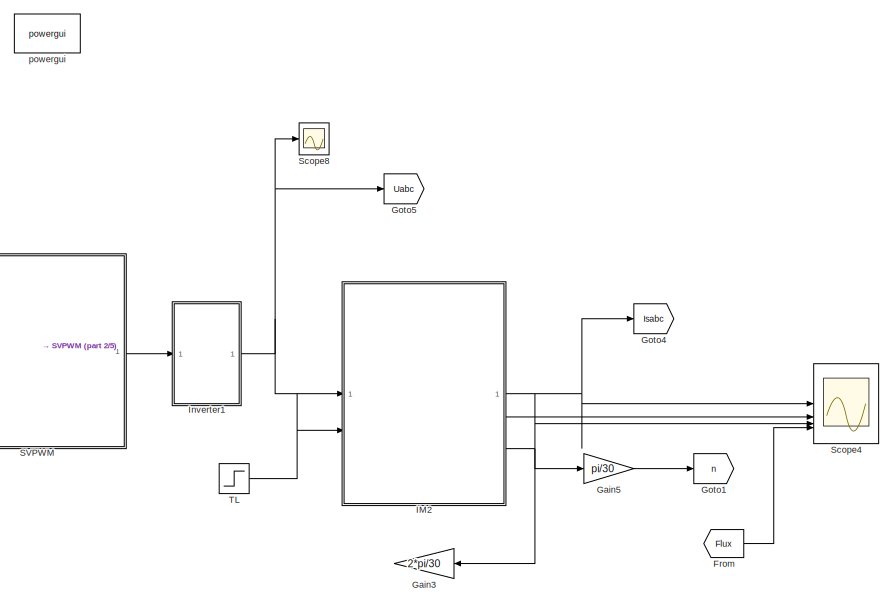
[diagram: root canvas - part 1/5, top center region]
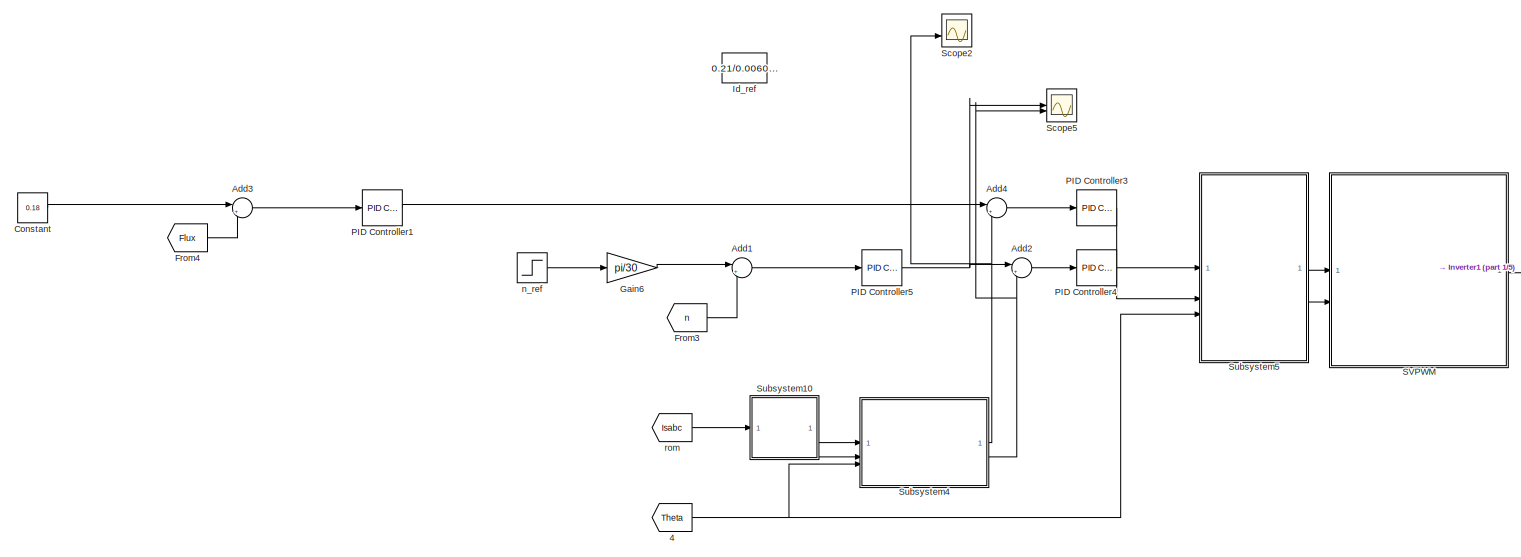
[diagram: root canvas - part 2/5, top left region]
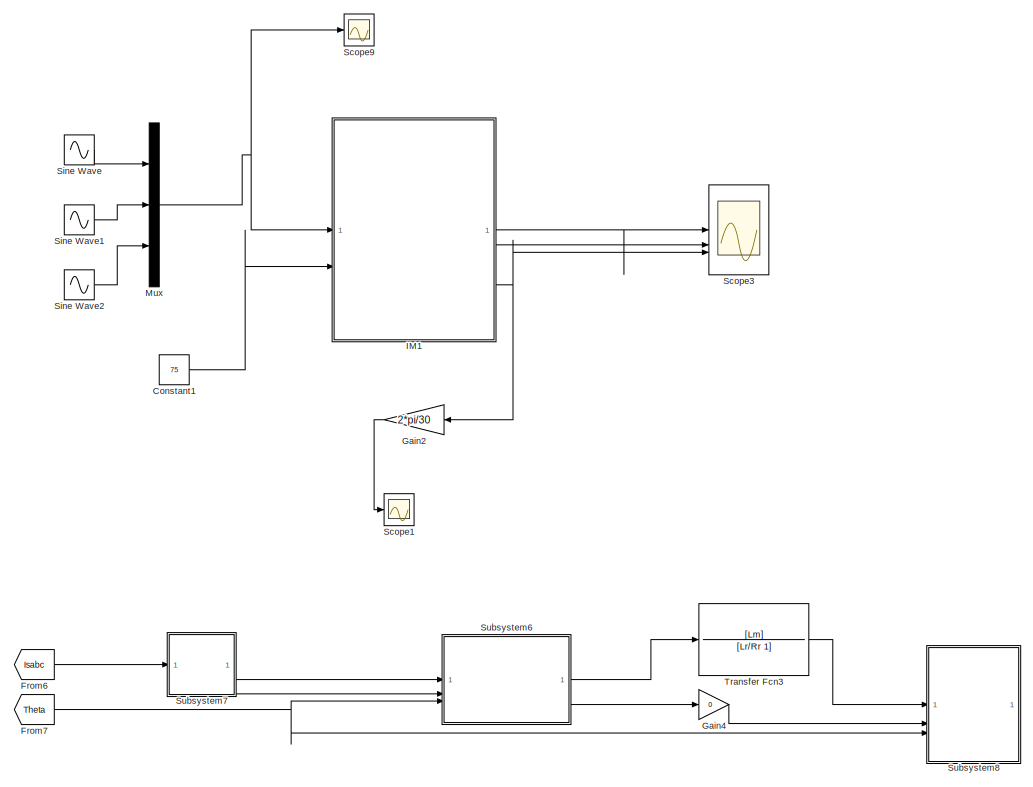
[diagram: root canvas - part 3/5, middle right region]
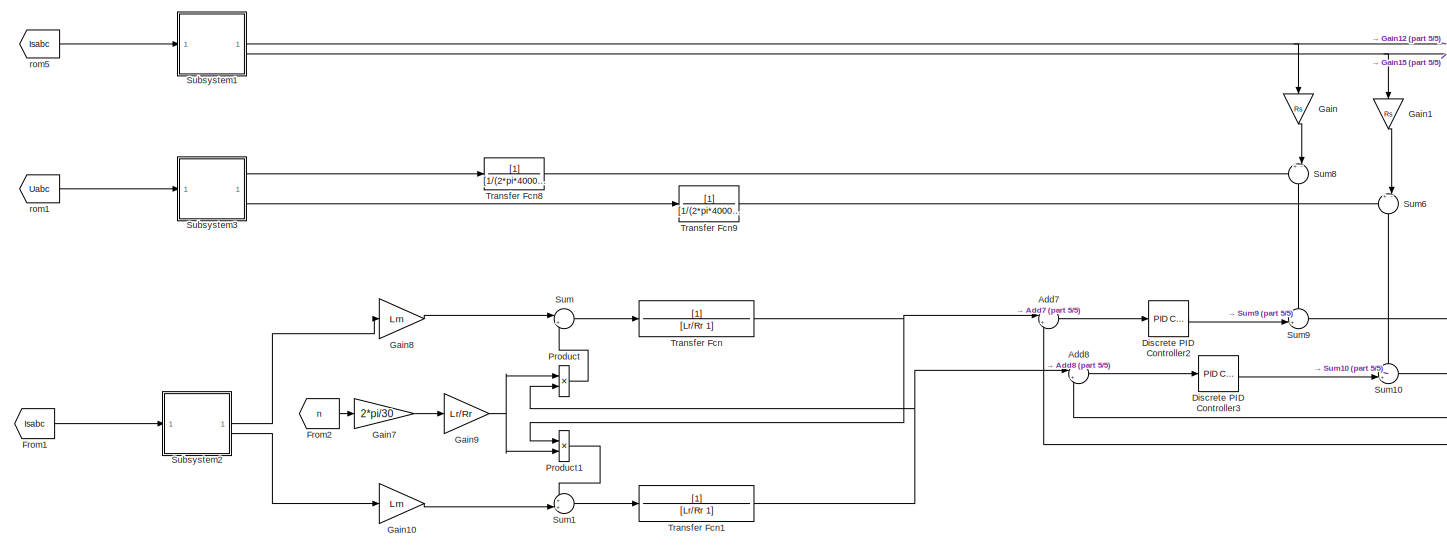
[diagram: root canvas - part 4/5, bottom left region]
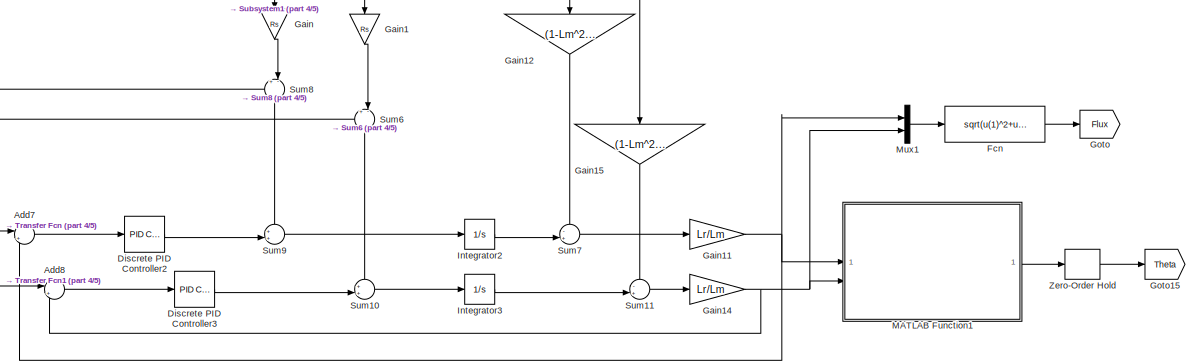
[diagram: root canvas - part 5/5, bottom center region]
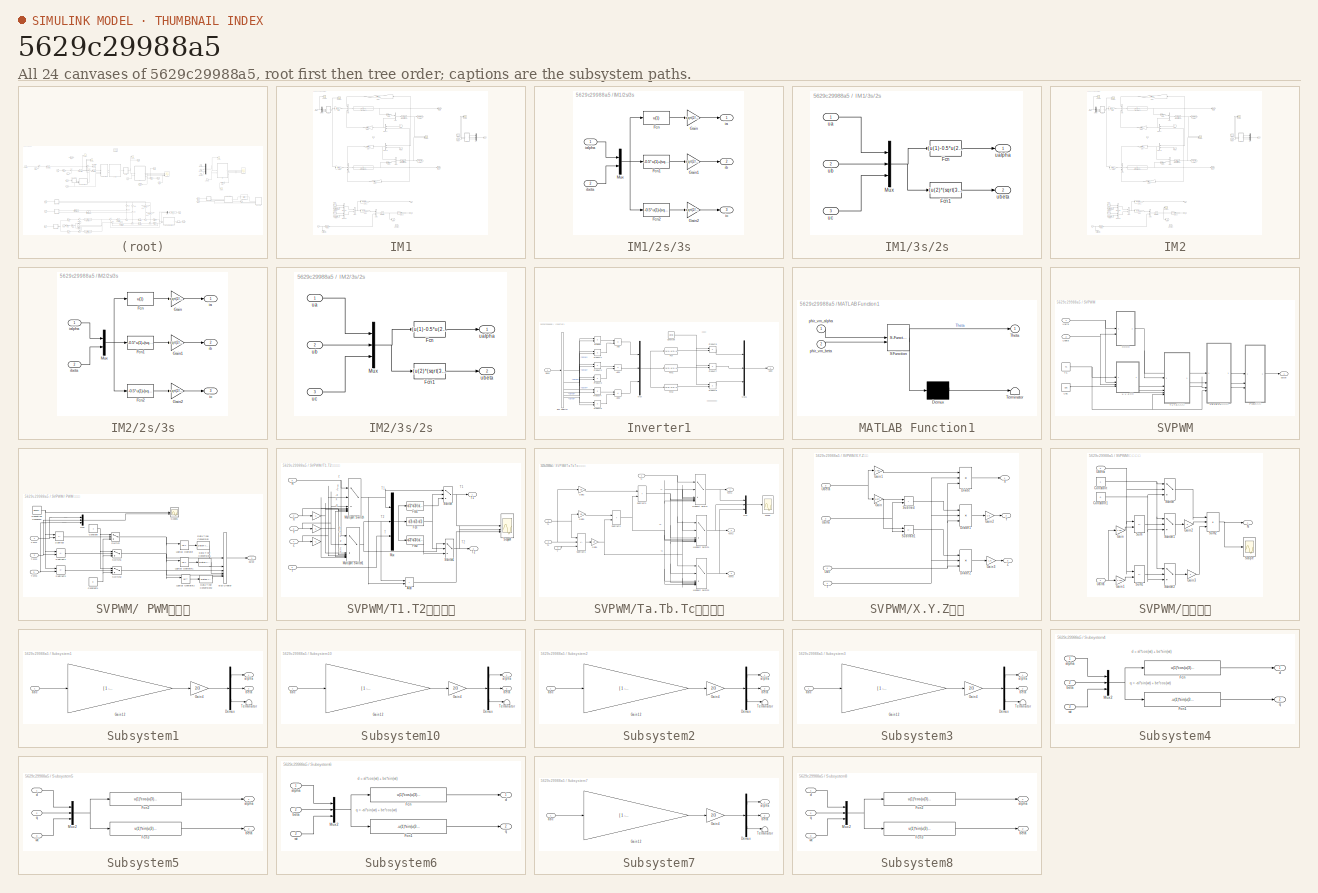
[diagram: thumbnail index - all 24 canvases of the model, root first then tree order]
MODEL slx_5629c29988a5
KIND model
CONFIG AbsTol = auto
CONFIG EnableMultiTasking = off
CONFIG FixedStep = auto
CONFIG InitFcn = Tsc=0.0001;\nRs=0.0113929;\nRr=0.0197883;\nLs=0.007145;\nLr=0.007145;\nLm=0.007045;\nw_c=100;
CONFIG MaxStep = auto
CONFIG MinStep = auto
CONFIG RelTol = 1e-3
CONFIG SampleTimeConstraint = Unconstrained
CONFIG SolverName = VariableStepAuto
CONFIG StartTime = 0.0
CONFIG StopTime = 2
BLOCK [From] 4
  GotoTag = Theta
BLOCK [Sum] Add1
  Inputs = |+-
  NameLocation = top
BLOCK [Sum] Add2
  Inputs = |+-
  NameLocation = top
BLOCK [Sum] Add3
  Inputs = |+-
  NameLocation = top
BLOCK [Sum] Add4
  Inputs = |+-
  NameLocation = top
BLOCK [Sum] Add7
  Inputs = |+-
  NameLocation = top
BLOCK [Sum] Add8
  Inputs = |+-
  NameLocation = top
BLOCK [Constant] Constant
  Value = 0.18
BLOCK [Constant] Constant1
  Commented = on
  Value = 75
BLOCK [Reference] Discrete PID Controller2  REF=slpidlib/PID Controller
  LibrarySourceBlock = hdlsllib/Discrete/Discrete PID Controller
  SourceBlock = slpidlib/PID Controller
  SourceType = PID 1dof
BLOCK [Reference] Discrete PID Controller3  REF=slpidlib/PID Controller
  LibrarySourceBlock = hdlsllib/Discrete/Discrete PID Controller
  SourceBlock = slpidlib/PID Controller
  SourceType = PID 1dof
BLOCK [Fcn] Fcn
  Expr = sqrt(u(1)^2+u(2)^2)
BLOCK [From] From
  GotoTag = Flux
BLOCK [From] From1
  GotoTag = Isabc
BLOCK [From] From2
  GotoTag = n
BLOCK [From] From3
  GotoTag = n
BLOCK [From] From4
  GotoTag = Flux
BLOCK [From] From6
  Commented = on
  GotoTag = Isabc
BLOCK [From] From7
  Commented = on
  GotoTag = Theta
BLOCK [Gain] Gain
  Gain = Rs
  NameLocation = left
BLOCK [Gain] Gain1
  Gain = Rs
  NameLocation = left
BLOCK [Gain] Gain10
  Gain = Lm
BLOCK [Gain] Gain11
  Gain = Lr/Lm
BLOCK [Gain] Gain12
  Gain = (1-Lm^2/Ls/Lr)*Ls
  NameLocation = left
BLOCK [Gain] Gain14
  Gain = Lr/Lm
BLOCK [Gain] Gain15
  Gain = (1-Lm^2/Ls/Lr)*Ls
  NameLocation = left
BLOCK [Gain] Gain2
  Commented = on
  Gain = 2*pi/30
BLOCK [Gain] Gain3
  Gain = 2*pi/30
BLOCK [Gain] Gain4
  Commented = on
  Gain = 0
BLOCK [Gain] Gain5
  Gain = pi/30
BLOCK [Gain] Gain6
  Gain = pi/30
BLOCK [Gain] Gain7
  Gain = 2*pi/30
BLOCK [Gain] Gain8
  Gain = Lm
BLOCK [Gain] Gain9
  Gain = Lr/Rr
BLOCK [Goto] Goto
  GotoTag = Flux
BLOCK [Goto] Goto1
  GotoTag = n
BLOCK [Goto] Goto15
  GotoTag = Theta
BLOCK [Goto] Goto4
  GotoTag = Isabc
BLOCK [Goto] Goto5
  GotoTag = Uabc
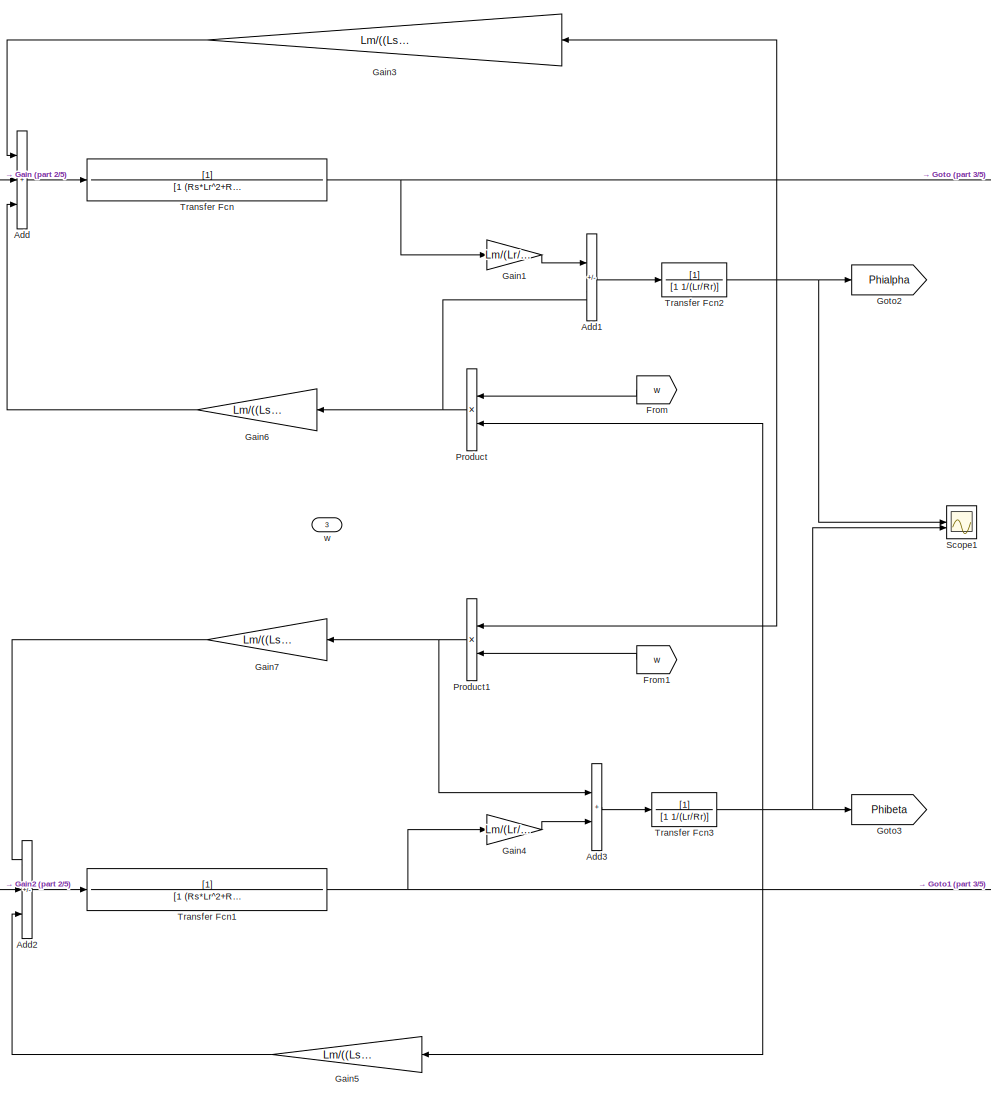
[diagram: IM1 - part 1/5, central region]
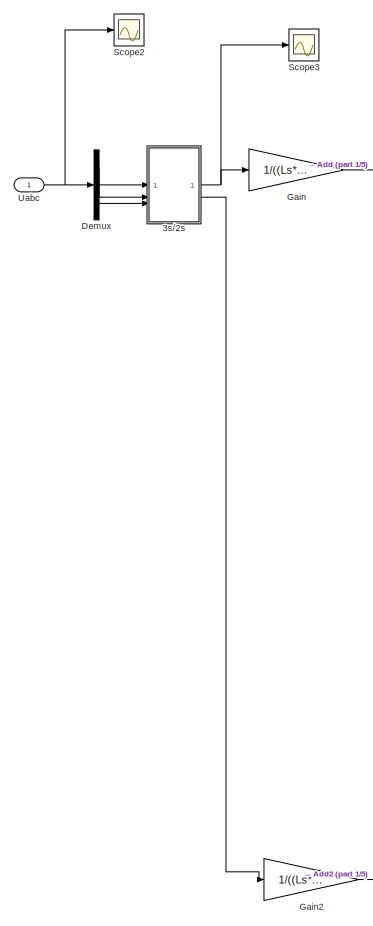
[diagram: IM1 - part 2/5, top left region]
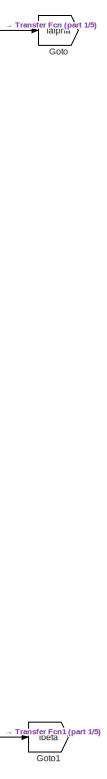
[diagram: IM1 - part 3/5, top right region]
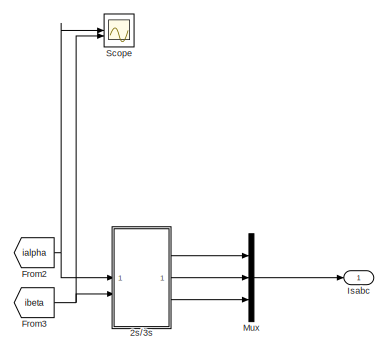
[diagram: IM1 - part 4/5, top right region]
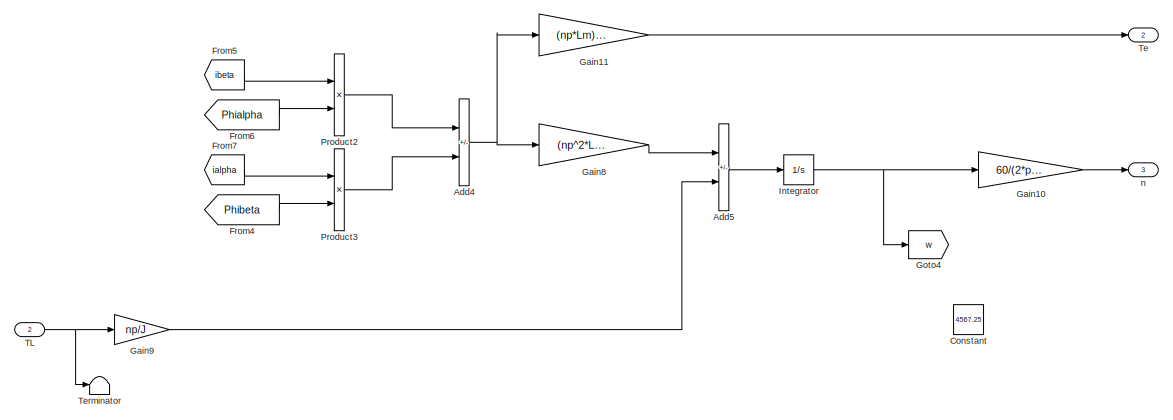
[diagram: IM1 - part 5/5, bottom left region]
BLOCK [SubSystem] IM1
  Commented = on
BLOCK [SubSystem] IM1/2s//3s
BLOCK [Fcn] IM1/2s//3s/Fcn
  Expr = u(1)
BLOCK [Fcn] IM1/2s//3s/Fcn1
  Expr = -0.5*u(1)+(sqrt(3)/2)*u(2)
BLOCK [Fcn] IM1/2s//3s/Fcn2
  Expr = -0.5*u(1)-(sqrt(3)/2)*u(2)
BLOCK [Gain] IM1/2s//3s/Gain
  Gain = sqrt(2/3)
BLOCK [Gain] IM1/2s//3s/Gain1
  Gain = sqrt(2/3)
BLOCK [Gain] IM1/2s//3s/Gain2
  Gain = sqrt(2/3)
BLOCK [Mux] IM1/2s//3s/Mux
  DisplayOption = bar
  Inputs = 2
BLOCK [Outport] IM1/2s//3s/ia
  VectorParamsAs1DForOutWhenUnconnected = off
BLOCK [Inport] IM1/2s//3s/ialpha
BLOCK [Outport] IM1/2s//3s/ib
  Port = 2
  VectorParamsAs1DForOutWhenUnconnected = off
BLOCK [Inport] IM1/2s//3s/ibeta
  Port = 2
BLOCK [Outport] IM1/2s//3s/ic
  Port = 3
  VectorParamsAs1DForOutWhenUnconnected = off
BLOCK [SubSystem] IM1/3s//2s
BLOCK [Fcn] IM1/3s//2s/Fcn
  Expr = (u(1)-0.5*u(2)-0.5*u(3))*sqrt(2/3)
BLOCK [Fcn] IM1/3s//2s/Fcn1
  Expr = (u(2)*(sqrt(3)/2)-u(3)*(sqrt(3)/2))*sqrt(2/3)
BLOCK [Mux] IM1/3s//2s/Mux
  DisplayOption = bar
  Inputs = 3
BLOCK [Inport] IM1/3s//2s/ua
BLOCK [Outport] IM1/3s//2s/ualpha
  VectorParamsAs1DForOutWhenUnconnected = off
BLOCK [Inport] IM1/3s//2s/ub
  Port = 2
BLOCK [Outport] IM1/3s//2s/ubeta
  Port = 2
  VectorParamsAs1DForOutWhenUnconnected = off
BLOCK [Inport] IM1/3s//2s/uc
  Port = 3
BLOCK [Sum] IM1/Add
  IconShape = rectangular
  Inputs = +++
BLOCK [Sum] IM1/Add1
  IconShape = rectangular
  Inputs = +-
BLOCK [Sum] IM1/Add2
  IconShape = rectangular
  Inputs = -++
BLOCK [Sum] IM1/Add3
  IconShape = rectangular
BLOCK [Sum] IM1/Add4
  IconShape = rectangular
  Inputs = +-
BLOCK [Sum] IM1/Add5
  IconShape = rectangular
  Inputs = +-
BLOCK [Constant] IM1/Constant
  Value = 4567.25
BLOCK [Demux] IM1/Demux
  Outputs = 3
BLOCK [From] IM1/From
  GotoTag = w
BLOCK [From] IM1/From1
  GotoTag = w
BLOCK [From] IM1/From2
  GotoTag = ialpha
BLOCK [From] IM1/From3
  GotoTag = ibeta
BLOCK [From] IM1/From4
  GotoTag = Phibeta
BLOCK [From] IM1/From5
  GotoTag = ibeta
BLOCK [From] IM1/From6
  GotoTag = Phialpha
BLOCK [From] IM1/From7
  GotoTag = ialpha
BLOCK [Gain] IM1/Gain
  Gain = 1/((Ls*Lr-Lm^2)/(Ls*Lr)*Ls)
BLOCK [Gain] IM1/Gain1
  Gain = Lm/(Lr/Rr)
BLOCK [Gain] IM1/Gain10
  Gain = 60/(2*pi*np)
  OutDataTypeStr = Inherit: Same as input
  ParamDataTypeStr = Inherit: Same as input
  SaturateOnIntegerOverflow = on
BLOCK [Gain] IM1/Gain11
  Gain = (np*Lm)/Lr
BLOCK [Gain] IM1/Gain2
  Gain = 1/((Ls*Lr-Lm^2)/(Ls*Lr)*Ls)
BLOCK [Gain] IM1/Gain3
  Gain = Lm/((Ls*Lr-Lm^2)/(Ls*Lr)*Ls*Lr*(Lr/Rr))
BLOCK [Gain] IM1/Gain4
  Gain = Lm/(Lr/Rr)
BLOCK [Gain] IM1/Gain5
  Gain = Lm/((Ls*Lr-Lm^2)/(Ls*Lr)*Ls*Lr*(Lr/Rr))
BLOCK [Gain] IM1/Gain6
  Gain = Lm/((Ls*Lr-Lm^2)/(Ls*Lr)*Ls*Lr)
BLOCK [Gain] IM1/Gain7
  Gain = Lm/((Ls*Lr-Lm^2)/(Ls*Lr)*Ls*Lr)
BLOCK [Gain] IM1/Gain8
  Gain = (np^2*Lm)/(J*Lr)
BLOCK [Gain] IM1/Gain9
  Gain = np/J
BLOCK [Goto] IM1/Goto
  GotoTag = ialpha
BLOCK [Goto] IM1/Goto1
  GotoTag = ibeta
BLOCK [Goto] IM1/Goto2
  GotoTag = Phialpha
BLOCK [Goto] IM1/Goto3
  GotoTag = Phibeta
BLOCK [Goto] IM1/Goto4
  GotoTag = w
BLOCK [Integrator] IM1/Integrator
BLOCK [Outport] IM1/Isabc
BLOCK [Mux] IM1/Mux
  DisplayOption = bar
  Inputs = 3
BLOCK [Product] IM1/Product
BLOCK [Product] IM1/Product1
BLOCK [Product] IM1/Product2
BLOCK [Product] IM1/Product3
BLOCK [Scope] IM1/Scope
  Floating = off
  NumInputPorts = 2
  ScopeSpecificationString = Simulink.scopes.TimeScopeBlockCfg('CurrentConfiguration', extmgr.ConfigurationSet(extmgr.Configuration('Core','General UI',true),extmgr.Configuration('Core','Source UI',true),extmgr.Configuration('Sources','WiredSimulink',true,'DataLoggingVariableName','ScopeData4'),extmgr.Configuration('Visuals','Time Domain',true,'SerializedDisplays',{struct('MinYLimReal','-4769.01791','MaxYLimReal','6919.15691'...<+1484ch>
BLOCK [Scope] IM1/Scope1
  Floating = off
  NumInputPorts = 2
  ScopeSpecificationString = Simulink.scopes.TimeScopeBlockCfg('CurrentConfiguration', extmgr.ConfigurationSet(extmgr.Configuration('Core','General UI',true),extmgr.Configuration('Core','Source UI',true),extmgr.Configuration('Sources','WiredSimulink',true,'DataLoggingVariableName','ScopeData5'),extmgr.Configuration('Visuals','Time Domain',true,'SerializedDisplays',{struct('MinYLimReal','-0.36686','MaxYLimReal','0.36686','YLab...<+1488ch>
BLOCK [Scope] IM1/Scope2
  Floating = off
  NumInputPorts = 1
  ScopeSpecificationString = Simulink.scopes.TimeScopeBlockCfg('CurrentConfiguration', extmgr.ConfigurationSet(extmgr.Configuration('Core','General UI',true),extmgr.Configuration('Core','Source UI',true),extmgr.Configuration('Sources','WiredSimulink',true,'DataLoggingVariableName','ScopeData1'),extmgr.Configuration('Visuals','Time Domain',true,'SerializedDisplays',{struct('MinYLimReal','-375.00000','MaxYLimReal','375.00000','...<+1496ch>
BLOCK [Scope] IM1/Scope3
  Floating = off
  NumInputPorts = 1
  ScopeSpecificationString = Simulink.scopes.TimeScopeBlockCfg('CurrentConfiguration', extmgr.ConfigurationSet(extmgr.Configuration('Core','General UI',true),extmgr.Configuration('Core','Source UI',true),extmgr.Configuration('Sources','WiredSimulink',true,'DataLoggingVariableName','ScopeData2'),extmgr.Configuration('Visuals','Time Domain',true,'SerializedDisplays',{struct('MinYLimReal','-153.09311','MaxYLimReal','153.09311','...<+1409ch>
BLOCK [Inport] IM1/TL
  Port = 2
BLOCK [Outport] IM1/Te
  Port = 2
BLOCK [Terminator] IM1/Terminator
BLOCK [TransferFcn] IM1/Transfer Fcn
  Denominator = [1 (Rs*Lr^2+Rr*Lm^2)/((Ls*Lr-Lm^2)/(Ls*Lr)*Ls*Lr^2)]
BLOCK [TransferFcn] IM1/Transfer Fcn1
  Denominator = [1 (Rs*Lr^2+Rr*Lm^2)/((Ls*Lr-Lm^2)/(Ls*Lr)*Ls*Lr^2)]
BLOCK [TransferFcn] IM1/Transfer Fcn2
  Denominator = [1 1/(Lr/Rr)]
BLOCK [TransferFcn] IM1/Transfer Fcn3
  Denominator = [1 1/(Lr/Rr)]
BLOCK [Inport] IM1/Uabc
BLOCK [Outport] IM1/n
  Port = 3
BLOCK [Inport] IM1/w
  Port = 3
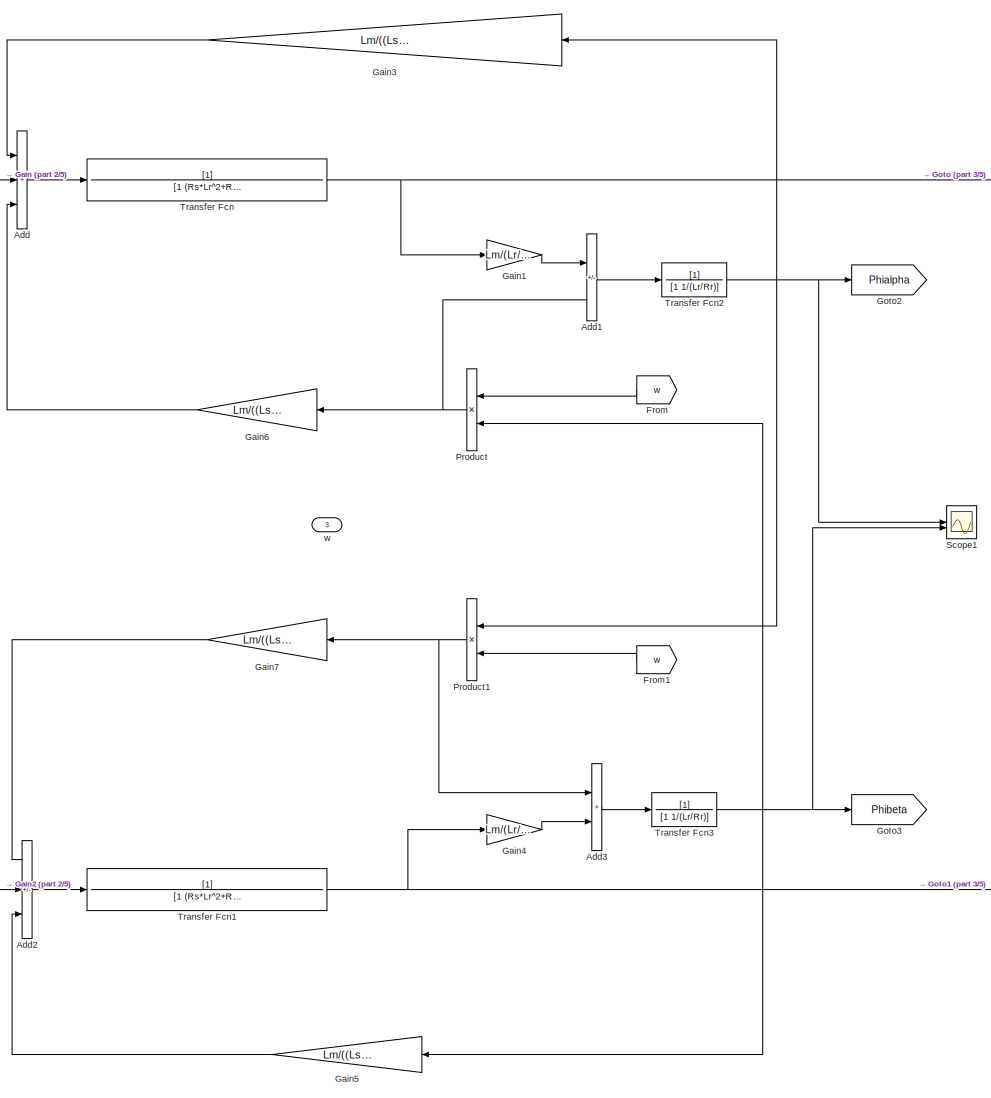
[diagram: IM2 - part 1/5, central region]
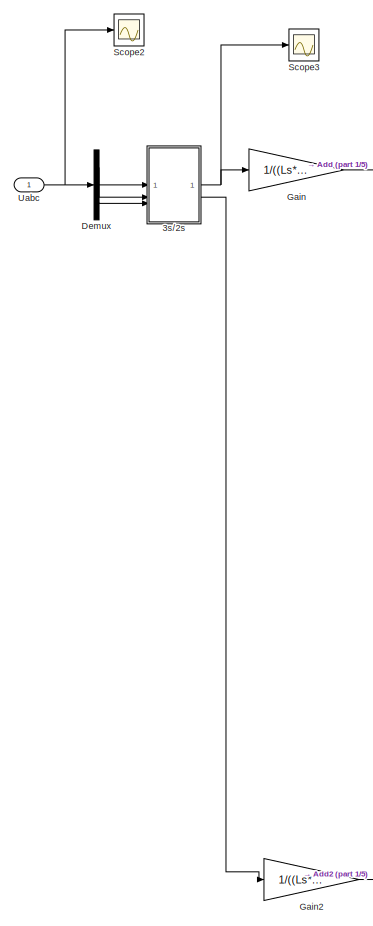
[diagram: IM2 - part 2/5, top left region]
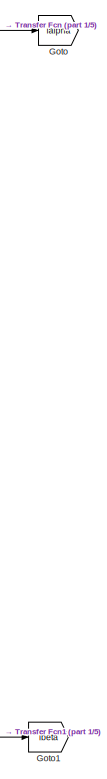
[diagram: IM2 - part 3/5, top right region]
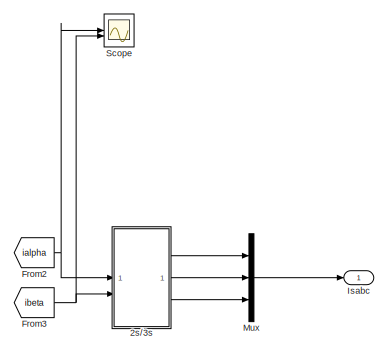
[diagram: IM2 - part 4/5, top right region]
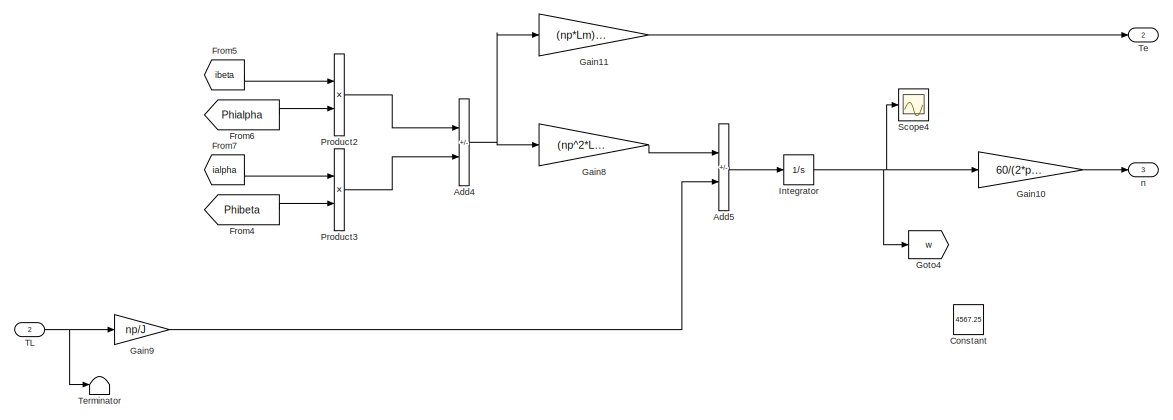
[diagram: IM2 - part 5/5, bottom left region]
BLOCK [SubSystem] IM2
BLOCK [SubSystem] IM2/2s//3s
BLOCK [Fcn] IM2/2s//3s/Fcn
  Expr = u(1)
BLOCK [Fcn] IM2/2s//3s/Fcn1
  Expr = -0.5*u(1)+(sqrt(3)/2)*u(2)
BLOCK [Fcn] IM2/2s//3s/Fcn2
  Expr = -0.5*u(1)-(sqrt(3)/2)*u(2)
BLOCK [Gain] IM2/2s//3s/Gain
  Gain = sqrt(2/3)
BLOCK [Gain] IM2/2s//3s/Gain1
  Gain = sqrt(2/3)
BLOCK [Gain] IM2/2s//3s/Gain2
  Gain = sqrt(2/3)
BLOCK [Mux] IM2/2s//3s/Mux
  DisplayOption = bar
  Inputs = 2
BLOCK [Outport] IM2/2s//3s/ia
  VectorParamsAs1DForOutWhenUnconnected = off
BLOCK [Inport] IM2/2s//3s/ialpha
BLOCK [Outport] IM2/2s//3s/ib
  Port = 2
  VectorParamsAs1DForOutWhenUnconnected = off
BLOCK [Inport] IM2/2s//3s/ibeta
  Port = 2
BLOCK [Outport] IM2/2s//3s/ic
  Port = 3
  VectorParamsAs1DForOutWhenUnconnected = off
BLOCK [SubSystem] IM2/3s//2s
BLOCK [Fcn] IM2/3s//2s/Fcn
  Expr = (u(1)-0.5*u(2)-0.5*u(3))*sqrt(2/3)
BLOCK [Fcn] IM2/3s//2s/Fcn1
  Expr = (u(2)*(sqrt(3)/2)-u(3)*(sqrt(3)/2))*sqrt(2/3)
BLOCK [Mux] IM2/3s//2s/Mux
  DisplayOption = bar
  Inputs = 3
BLOCK [Inport] IM2/3s//2s/ua
BLOCK [Outport] IM2/3s//2s/ualpha
  VectorParamsAs1DForOutWhenUnconnected = off
BLOCK [Inport] IM2/3s//2s/ub
  Port = 2
BLOCK [Outport] IM2/3s//2s/ubeta
  Port = 2
  VectorParamsAs1DForOutWhenUnconnected = off
BLOCK [Inport] IM2/3s//2s/uc
  Port = 3
BLOCK [Sum] IM2/Add
  IconShape = rectangular
  Inputs = +++
BLOCK [Sum] IM2/Add1
  IconShape = rectangular
  Inputs = +-
BLOCK [Sum] IM2/Add2
  IconShape = rectangular
  Inputs = -++
BLOCK [Sum] IM2/Add3
  IconShape = rectangular
BLOCK [Sum] IM2/Add4
  IconShape = rectangular
  Inputs = +-
BLOCK [Sum] IM2/Add5
  IconShape = rectangular
  Inputs = +-
BLOCK [Constant] IM2/Constant
  Value = 4567.25
BLOCK [Demux] IM2/Demux
  Outputs = 3
BLOCK [From] IM2/From
  GotoTag = w
BLOCK [From] IM2/From1
  GotoTag = w
BLOCK [From] IM2/From2
  GotoTag = ialpha
BLOCK [From] IM2/From3
  GotoTag = ibeta
BLOCK [From] IM2/From4
  GotoTag = Phibeta
BLOCK [From] IM2/From5
  GotoTag = ibeta
BLOCK [From] IM2/From6
  GotoTag = Phialpha
BLOCK [From] IM2/From7
  GotoTag = ialpha
BLOCK [Gain] IM2/Gain
  Gain = 1/((Ls*Lr-Lm^2)/(Ls*Lr)*Ls)
BLOCK [Gain] IM2/Gain1
  Gain = Lm/(Lr/Rr)
BLOCK [Gain] IM2/Gain10
  Gain = 60/(2*pi*np)
  OutDataTypeStr = Inherit: Same as input
  ParamDataTypeStr = Inherit: Same as input
  SaturateOnIntegerOverflow = on
BLOCK [Gain] IM2/Gain11
  Gain = (np*Lm)/Lr
BLOCK [Gain] IM2/Gain2
  Gain = 1/((Ls*Lr-Lm^2)/(Ls*Lr)*Ls)
BLOCK [Gain] IM2/Gain3
  Gain = Lm/((Ls*Lr-Lm^2)/(Ls*Lr)*Ls*Lr*(Lr/Rr))
BLOCK [Gain] IM2/Gain4
  Gain = Lm/(Lr/Rr)
BLOCK [Gain] IM2/Gain5
  Gain = Lm/((Ls*Lr-Lm^2)/(Ls*Lr)*Ls*Lr*(Lr/Rr))
BLOCK [Gain] IM2/Gain6
  Gain = Lm/((Ls*Lr-Lm^2)/(Ls*Lr)*Ls*Lr)
BLOCK [Gain] IM2/Gain7
  Gain = Lm/((Ls*Lr-Lm^2)/(Ls*Lr)*Ls*Lr)
BLOCK [Gain] IM2/Gain8
  Gain = (np^2*Lm)/(J*Lr)
BLOCK [Gain] IM2/Gain9
  Gain = np/J
BLOCK [Goto] IM2/Goto
  GotoTag = ialpha
BLOCK [Goto] IM2/Goto1
  GotoTag = ibeta
BLOCK [Goto] IM2/Goto2
  GotoTag = Phialpha
BLOCK [Goto] IM2/Goto3
  GotoTag = Phibeta
BLOCK [Goto] IM2/Goto4
  GotoTag = w
BLOCK [Integrator] IM2/Integrator
  InitialCondition = 0.001
BLOCK [Outport] IM2/Isabc
BLOCK [Mux] IM2/Mux
  DisplayOption = bar
  Inputs = 3
BLOCK [Product] IM2/Product
BLOCK [Product] IM2/Product1
BLOCK [Product] IM2/Product2
BLOCK [Product] IM2/Product3
BLOCK [Scope] IM2/Scope
  Floating = off
  NumInputPorts = 2
  ScopeSpecificationString = Simulink.scopes.TimeScopeBlockCfg('CurrentConfiguration', extmgr.ConfigurationSet(extmgr.Configuration('Core','General UI',true),extmgr.Configuration('Core','Source UI',true),extmgr.Configuration('Sources','WiredSimulink',true,'DataLoggingVariableName','ScopeData4'),extmgr.Configuration('Visuals','Time Domain',true,'SerializedDisplays',{struct('MinYLimReal','-740.66892','MaxYLimReal','703.8008','Y...<+1499ch>
BLOCK [Scope] IM2/Scope1
  Floating = off
  NumInputPorts = 2
  ScopeSpecificationString = Simulink.scopes.TimeScopeBlockCfg('CurrentConfiguration', extmgr.ConfigurationSet(extmgr.Configuration('Core','General UI',true),extmgr.Configuration('Core','Source UI',true),extmgr.Configuration('Sources','WiredSimulink',true,'DataLoggingVariableName','ScopeData5'),extmgr.Configuration('Visuals','Time Domain',true,'SerializedDisplays',{struct('MinYLimReal','-0.27043','MaxYLimReal','0.28396','YLab...<+1463ch>
BLOCK [Scope] IM2/Scope2
  Floating = off
  NumInputPorts = 1
  ScopeSpecificationString = Simulink.scopes.TimeScopeBlockCfg('CurrentConfiguration', extmgr.ConfigurationSet(extmgr.Configuration('Core','General UI',true),extmgr.Configuration('Core','Source UI',true),extmgr.Configuration('Sources','WiredSimulink',true,'DataLoggingVariableName','ScopeData1'),extmgr.Configuration('Visuals','Time Domain',true,'SerializedDisplays',{struct('MinYLimReal','-375.00000','MaxYLimReal','375.00000','...<+1496ch>
BLOCK [Scope] IM2/Scope3
  Floating = off
  NumInputPorts = 1
  ScopeSpecificationString = Simulink.scopes.TimeScopeBlockCfg('CurrentConfiguration', extmgr.ConfigurationSet(extmgr.Configuration('Core','General UI',true),extmgr.Configuration('Core','Source UI',true),extmgr.Configuration('Sources','WiredSimulink',true,'DataLoggingVariableName','ScopeData2'),extmgr.Configuration('Visuals','Time Domain',true,'SerializedDisplays',{struct('MinYLimReal','-551.13519','MaxYLimReal','551.13519','...<+1409ch>
BLOCK [Scope] IM2/Scope4
  Floating = off
  NumInputPorts = 1
  ScopeSpecificationString = Simulink.scopes.TimeScopeBlockCfg('CurrentConfiguration', extmgr.ConfigurationSet(extmgr.Configuration('Core','General UI',true),extmgr.Configuration('Core','Source UI',true),extmgr.Configuration('Sources','WiredSimulink',true,'DataLoggingVariableName','ScopeData3'),extmgr.Configuration('Visuals','Time Domain',true,'SerializedDisplays',{struct('MinYLimReal','-108.20745','MaxYLimReal','943.03863','...<+1450ch>
BLOCK [Inport] IM2/TL
  Port = 2
BLOCK [Outport] IM2/Te
  Port = 2
BLOCK [Terminator] IM2/Terminator
BLOCK [TransferFcn] IM2/Transfer Fcn
  Denominator = [1 (Rs*Lr^2+Rr*Lm^2)/((Ls*Lr-Lm^2)/(Ls*Lr)*Ls*Lr^2)]
BLOCK [TransferFcn] IM2/Transfer Fcn1
  Denominator = [1 (Rs*Lr^2+Rr*Lm^2)/((Ls*Lr-Lm^2)/(Ls*Lr)*Ls*Lr^2)]
BLOCK [TransferFcn] IM2/Transfer Fcn2
  Denominator = [1 1/(Lr/Rr)]
BLOCK [TransferFcn] IM2/Transfer Fcn3
  Denominator = [1 1/(Lr/Rr)]
BLOCK [Inport] IM2/Uabc
BLOCK [Outport] IM2/n
  Port = 3
BLOCK [Inport] IM2/w
  Port = 3
BLOCK [Constant] Id_ref
  Value = 0.21/0.006045
BLOCK [Integrator] Integrator2
  InitialCondition = 0.001
  LimitOutput = on
  LowerSaturationLimit = -1e6
  UpperSaturationLimit = 1e6
BLOCK [Integrator] Integrator3
  InitialCondition = 0.001
  LimitOutput = on
  LowerSaturationLimit = -1e6
  UpperSaturationLimit = 1e6
BLOCK [SubSystem] Inverter1
BLOCK [Sum] Inverter1/Add
  IconShape = rectangular
  Inputs = +-
BLOCK [Sum] Inverter1/Add1
  IconShape = rectangular
  Inputs = +-
BLOCK [Sum] Inverter1/Add2
  IconShape = rectangular
  Inputs = +-
BLOCK [BusSelector] Inverter1/Bus Selector
  OutputSignals = signal1,signal2,signal3,signal4,signal5,signal6
BLOCK [Constant] Inverter1/Constant
  Value = Udc/6
BLOCK [Fcn] Inverter1/Fcn
  Expr = 2*u(1)-u(2)-u(3)
BLOCK [Fcn] Inverter1/Fcn1
  Expr = 2*u(2)-u(1)-u(3)
BLOCK [Fcn] Inverter1/Fcn2
  Expr = 2*u(3)-u(2)-u(1)
BLOCK [Mux] Inverter1/Mux
  DisplayOption = bar
  Inputs = 3
BLOCK [Mux] Inverter1/Mux1
  DisplayOption = bar
  Inputs = 3
BLOCK [Product] Inverter1/Product
BLOCK [Product] Inverter1/Product1
BLOCK [Product] Inverter1/Product2
BLOCK [Product] Inverter1/Product3
BLOCK [Product] Inverter1/Product4
BLOCK [Product] Inverter1/Product5
BLOCK [Product] Inverter1/Product6
BLOCK [Product] Inverter1/Product7
BLOCK [Product] Inverter1/Product8
BLOCK [Outport] Inverter1/Uabc
  VectorParamsAs1DForOutWhenUnconnected = off
BLOCK [Inport] Inverter1/pluse
BLOCK [SubSystem] MATLAB Function1
  ErrorFcn = Stateflow.Translate.translate
  PermitHierarchicalResolution = ExplicitOnly
  SFBlockType = MATLAB Function
  TreatAsAtomicUnit = on
BLOCK [Demux] MATLAB Function1/ Demux 
  Outputs = 1
BLOCK [S-Function] MATLAB Function1/ SFunction 
  EnableBusSupport = on
  FunctionName = sf_sfun
  PortCounts = [2 2]
  SFcnIsStateOwnerBlock = off
  SFunctionDeploymentMode = off
  Tag = Stateflow S-Function 1
BLOCK [Terminator] MATLAB Function1/ Terminator 
BLOCK [Outport] MATLAB Function1/Theta
BLOCK [Inport] MATLAB Function1/phir_vm_alpha
BLOCK [Inport] MATLAB Function1/phir_vm_beta
  Port = 2
BLOCK [Mux] Mux
  Commented = on
  DisplayOption = bar
  Inputs = 3
BLOCK [Mux] Mux1
  DisplayOption = bar
  Inputs = 2
BLOCK [Reference] PID Controller1  REF=slpidlib/PID Controller
  LibrarySourceBlock = simulink/Continuous/PID Controller
  SourceBlock = slpidlib/PID Controller
  SourceType = PID 1dof
BLOCK [Reference] PID Controller3  REF=slpidlib/PID Controller
  LibrarySourceBlock = simulink/Continuous/PID Controller
  SourceBlock = slpidlib/PID Controller
  SourceType = PID 1dof
BLOCK [Reference] PID Controller4  REF=slpidlib/PID Controller
  LibrarySourceBlock = simulink/Continuous/PID Controller
  SourceBlock = slpidlib/PID Controller
  SourceType = PID 1dof
BLOCK [Reference] PID Controller5  REF=slpidlib/PID Controller
  LibrarySourceBlock = simulink/Continuous/PID Controller
  SourceBlock = slpidlib/PID Controller
  SourceType = PID 1dof
BLOCK [Product] Product
BLOCK [Product] Product1
BLOCK [SubSystem] SVPWM
BLOCK [SubSystem] SVPWM/ PWM波生成
BLOCK [BusCreator] SVPWM/ PWM波生成/Bus Creator
  DisplayOption = bar
  InheritFromInputs = on
  Inputs = 6
BLOCK [Constant] SVPWM/ PWM波生成/Constant
BLOCK [Constant] SVPWM/ PWM波生成/Constant1
  Value = 0
BLOCK [DataTypeConversion] SVPWM/ PWM波生成/Data Type Conversion
  OutDataTypeStr = double
  RndMeth = Floor
  SaturateOnIntegerOverflow = off
BLOCK [DataTypeConversion] SVPWM/ PWM波生成/Data Type Conversion1
  OutDataTypeStr = double
  RndMeth = Floor
  SaturateOnIntegerOverflow = off
BLOCK [DataTypeConversion] SVPWM/ PWM波生成/Data Type Conversion2
  OutDataTypeStr = double
  RndMeth = Floor
  SaturateOnIntegerOverflow = off
BLOCK [Logic] SVPWM/ PWM波生成/Logical Operator
  AllPortsSameDT = off
  NameLocation = top
  Operator = NOT
BLOCK [Logic] SVPWM/ PWM波生成/Logical Operator1
  AllPortsSameDT = off
  NameLocation = top
  Operator = NOT
BLOCK [Logic] SVPWM/ PWM波生成/Logical Operator2
  AllPortsSameDT = off
  NameLocation = top
  Operator = NOT
BLOCK [Mux] SVPWM/ PWM波生成/Mux
  DisplayOption = bar
  Inputs = 3
BLOCK [Reference] SVPWM/ PWM波生成/Repeating Sequence  REF=simulink/Sources/Repeating
Sequence
  SourceBlock = simulink/Sources/Repeating\nSequence
  SourceType = Repeating table
BLOCK [Scope] SVPWM/ PWM波生成/Scope1
  Floating = off
  NumInputPorts = 2
  ScopeSpecificationString = Simulink.scopes.TimeScopeBlockCfg('CurrentConfiguration', extmgr.ConfigurationSet(extmgr.Configuration('Core','General UI',true),extmgr.Configuration('Core','Source UI',true),extmgr.Configuration('Sources','WiredSimulink',true,'DataLoggingVariableName','ScopeData6','DataLoggingSaveFormat','StructureWithTime','DataLoggingDecimation','1','DataLoggingDecimateData',true),extmgr.Configuration('Visuals'...<+1793ch>
BLOCK [Sum] SVPWM/ PWM波生成/Subtract
  IconShape = rectangular
  Inputs = +-
BLOCK [Sum] SVPWM/ PWM波生成/Subtract1
  IconShape = rectangular
  Inputs = +-
BLOCK [Sum] SVPWM/ PWM波生成/Subtract2
  IconShape = rectangular
  Inputs = +-
BLOCK [Switch] SVPWM/ PWM波生成/Switch
  InputSameDT = off
  SaturateOnIntegerOverflow = off
BLOCK [Switch] SVPWM/ PWM波生成/Switch1
  InputSameDT = off
  SaturateOnIntegerOverflow = off
BLOCK [Switch] SVPWM/ PWM波生成/Switch2
  InputSameDT = off
  SaturateOnIntegerOverflow = off
BLOCK [Inport] SVPWM/ PWM波生成/Tcm1
BLOCK [Inport] SVPWM/ PWM波生成/Tcm2
  Port = 2
BLOCK [Inport] SVPWM/ PWM波生成/Tcm3
  Port = 3
BLOCK [Outport] SVPWM/ PWM波生成/pulse
  VectorParamsAs1DForOutWhenUnconnected = off
BLOCK [SubSystem] SVPWM/T1.T2作用时间
BLOCK [Gain] SVPWM/T1.T2作用时间/ 
  Gain = -1
BLOCK [Gain] SVPWM/T1.T2作用时间/  
  Gain = -1
BLOCK [Gain] SVPWM/T1.T2作用时间/    
  Gain = -1
BLOCK [Sum] SVPWM/T1.T2作用时间/Add
  IconShape = rectangular
BLOCK [Fcn] SVPWM/T1.T2作用时间/Fcn
  Expr = u(3)-u(2)-u(1)
BLOCK [Fcn] SVPWM/T1.T2作用时间/Fcn1
  Expr = u(1)*u(3)/(u(1)+u(2))
BLOCK [Fcn] SVPWM/T1.T2作用时间/Fcn2
  Expr = u(2)*u(3)/(u(1)+u(2))
BLOCK [MultiPortSwitch] SVPWM/T1.T2作用时间/Multiport Switch
  InputSameDT = off
  Inputs = 6
  SaturateOnIntegerOverflow = off
BLOCK [MultiPortSwitch] SVPWM/T1.T2作用时间/Multiport Switch1
  InputSameDT = off
  Inputs = 6
  SaturateOnIntegerOverflow = off
BLOCK [Mux] SVPWM/T1.T2作用时间/Mux
  DisplayOption = bar
  Inputs = 3
BLOCK [Inport] SVPWM/T1.T2作用时间/N
BLOCK [Scope] SVPWM/T1.T2作用时间/Scope4
  Floating = off
  NumInputPorts = 3
  ScopeSpecificationString = Simulink.scopes.TimeScopeBlockCfg('CurrentConfiguration', extmgr.ConfigurationSet(extmgr.Configuration('Core','General UI',true),extmgr.Configuration('Core','Source UI',true),extmgr.Configuration('Sources','WiredSimulink',true,'DataLoggingVariableName','ScopeData4','DataLoggingSaveFormat','StructureWithTime','DataLoggingDecimation','1','DataLoggingDecimateData',true),extmgr.Configuration('Visuals'...<+3074ch>
BLOCK [Switch] SVPWM/T1.T2作用时间/Switch
  InputSameDT = off
  SaturateOnIntegerOverflow = off
BLOCK [Switch] SVPWM/T1.T2作用时间/Switch1
  Criteria = u2 > Threshold
  InputSameDT = off
  SaturateOnIntegerOverflow = off
BLOCK [Inport] SVPWM/T1.T2作用时间/T
  Port = 5
BLOCK [Outport] SVPWM/T1.T2作用时间/T1
  VectorParamsAs1DForOutWhenUnconnected = off
BLOCK [Outport] SVPWM/T1.T2作用时间/T2
  Port = 2
  VectorParamsAs1DForOutWhenUnconnected = off
BLOCK [Inport] SVPWM/T1.T2作用时间/X
  Port = 2
BLOCK [Inport] SVPWM/T1.T2作用时间/Y
  Port = 3
BLOCK [Inport] SVPWM/T1.T2作用时间/Z
  Port = 4
BLOCK [SubSystem] SVPWM/Ta.Tb.Tc计算时间
BLOCK [Gain] SVPWM/Ta.Tb.Tc计算时间/Gain1
  Gain = 1/4
BLOCK [Gain] SVPWM/Ta.Tb.Tc计算时间/Gain2
  Gain = 0.5
BLOCK [Gain] SVPWM/Ta.Tb.Tc计算时间/Gain3
  Gain = 0.5
BLOCK [MultiPortSwitch] SVPWM/Ta.Tb.Tc计算时间/Multiport Switch
  InputSameDT = off
  Inputs = 6
  SaturateOnIntegerOverflow = off
BLOCK [MultiPortSwitch] SVPWM/Ta.Tb.Tc计算时间/Multiport Switch1
  InputSameDT = off
  Inputs = 6
  SaturateOnIntegerOverflow = off
BLOCK [MultiPortSwitch] SVPWM/Ta.Tb.Tc计算时间/Multiport Switch2
  InputSameDT = off
  Inputs = 6
  SaturateOnIntegerOverflow = off
BLOCK [Mux] SVPWM/Ta.Tb.Tc计算时间/Mux
  DisplayOption = bar
  Inputs = 3
BLOCK [Inport] SVPWM/Ta.Tb.Tc计算时间/N
BLOCK [Scope] SVPWM/Ta.Tb.Tc计算时间/Scope
  Floating = off
  NumInputPorts = 1
  ScopeSpecificationString = Simulink.scopes.TimeScopeBlockCfg('CurrentConfiguration', extmgr.ConfigurationSet(extmgr.Configuration('Core','General UI',true),extmgr.Configuration('Core','Source UI',true),extmgr.Configuration('Sources','WiredSimulink',true,'DataLoggingVariableName','ScopeData1','DataLoggingSaveFormat','Array','DataLoggingDecimation','1','DataLoggingDecimateData',true),extmgr.Configuration('Visuals','Time Domai...<+865ch>
BLOCK [Sum] SVPWM/Ta.Tb.Tc计算时间/Subtract1
  IconShape = rectangular
  Inputs = --+
BLOCK [Sum] SVPWM/Ta.Tb.Tc计算时间/Subtract2
  IconShape = rectangular
BLOCK [Sum] SVPWM/Ta.Tb.Tc计算时间/Subtract3
  IconShape = rectangular
BLOCK [Inport] SVPWM/Ta.Tb.Tc计算时间/T
  Port = 4
BLOCK [Inport] SVPWM/Ta.Tb.Tc计算时间/T1
  Port = 2
BLOCK [Inport] SVPWM/Ta.Tb.Tc计算时间/T2
  Port = 3
BLOCK [Outport] SVPWM/Ta.Tb.Tc计算时间/Tcm1
  VectorParamsAs1DForOutWhenUnconnected = off
BLOCK [Outport] SVPWM/Ta.Tb.Tc计算时间/Tcm2
  Port = 2
  VectorParamsAs1DForOutWhenUnconnected = off
BLOCK [Outport] SVPWM/Ta.Tb.Tc计算时间/Tcm3
  Port = 3
  VectorParamsAs1DForOutWhenUnconnected = off
BLOCK [Constant] SVPWM/Ts
  SampleTime = Tsc
  Value = Ts
BLOCK [Inport] SVPWM/Ualfa
BLOCK [Inport] SVPWM/Ubeta
  Port = 2
BLOCK [Constant] SVPWM/Udc
  SampleTime = Tsc
  Value = Udc
BLOCK [SubSystem] SVPWM/X.Y.Z计算
BLOCK [Product] SVPWM/X.Y.Z计算/Divide
  Inputs = **/
BLOCK [Product] SVPWM/X.Y.Z计算/Divide1
  Inputs = **/
BLOCK [Product] SVPWM/X.Y.Z计算/Divide2
  Inputs = **/
BLOCK [Gain] SVPWM/X.Y.Z计算/Gain
  Gain = 0.577
BLOCK [Gain] SVPWM/X.Y.Z计算/Gain1
  Gain = 1.732
BLOCK [Gain] SVPWM/X.Y.Z计算/Gain2
  Gain = 1.5
BLOCK [Gain] SVPWM/X.Y.Z计算/Gain3
  Gain = 1.5
BLOCK [Sum] SVPWM/X.Y.Z计算/Subtract
  IconShape = rectangular
BLOCK [Sum] SVPWM/X.Y.Z计算/Subtract1
  IconShape = rectangular
  Inputs = +-
BLOCK [Inport] SVPWM/X.Y.Z计算/T
BLOCK [Inport] SVPWM/X.Y.Z计算/Ualfa
  Port = 2
BLOCK [Inport] SVPWM/X.Y.Z计算/Ubeta
  Port = 3
BLOCK [Inport] SVPWM/X.Y.Z计算/Udc
  Port = 4
BLOCK [Outport] SVPWM/X.Y.Z计算/X
  VectorParamsAs1DForOutWhenUnconnected = off
BLOCK [Outport] SVPWM/X.Y.Z计算/Y
  Port = 2
  VectorParamsAs1DForOutWhenUnconnected = off
BLOCK [Outport] SVPWM/X.Y.Z计算/Z
  Port = 3
  VectorParamsAs1DForOutWhenUnconnected = off
BLOCK [Outport] SVPWM/pulse
  VectorParamsAs1DForOutWhenUnconnected = off
BLOCK [SubSystem] SVPWM/扇区选择
BLOCK [Constant] SVPWM/扇区选择/Constant
BLOCK [Constant] SVPWM/扇区选择/Constant1
  Value = 0
BLOCK [Gain] SVPWM/扇区选择/Gain
  Gain = 1.732
BLOCK [Gain] SVPWM/扇区选择/Gain1
  Gain = -1.732
BLOCK [Gain] SVPWM/扇区选择/Gain2
  Gain = 2
BLOCK [Gain] SVPWM/扇区选择/Gain3
  Gain = 4
BLOCK [Outport] SVPWM/扇区选择/N
  VectorParamsAs1DForOutWhenUnconnected = off
BLOCK [Scope] SVPWM/扇区选择/Scope
  Floating = off
  NumInputPorts = 1
  ScopeSpecificationString = Simulink.scopes.TimeScopeBlockCfg('CurrentConfiguration', extmgr.ConfigurationSet(extmgr.Configuration('Core','General UI',true),extmgr.Configuration('Core','Source UI',true),extmgr.Configuration('Sources','WiredSimulink',true,'DataLoggingVariableName','ScopeData2','DataLoggingSaveFormat','Array','DataLoggingDecimation','1','DataLoggingDecimateData',true),extmgr.Configuration('Visuals','Time Domai...<+865ch>
BLOCK [Sum] SVPWM/扇区选择/Sum
  IconShape = rectangular
  Inputs = |-+
BLOCK [Sum] SVPWM/扇区选择/Sum1
  IconShape = rectangular
  Inputs = |-+
BLOCK [Sum] SVPWM/扇区选择/Sum2
  IconShape = rectangular
  Inputs = |+++
BLOCK [Switch] SVPWM/扇区选择/Switch
  InputSameDT = off
  SaturateOnIntegerOverflow = off
BLOCK [Switch] SVPWM/扇区选择/Switch1
  InputSameDT = off
  SaturateOnIntegerOverflow = off
BLOCK [Switch] SVPWM/扇区选择/Switch2
  InputSameDT = off
  SaturateOnIntegerOverflow = off
BLOCK [Inport] SVPWM/扇区选择/Ualfa
BLOCK [Inport] SVPWM/扇区选择/Ubeta
  Port = 2
BLOCK [Scope] Scope1
  Commented = on
  Floating = off
  NumInputPorts = 1
  ScopeSpecificationString = Simulink.scopes.TimeScopeBlockCfg('CurrentConfiguration', extmgr.ConfigurationSet(extmgr.Configuration('Core','General UI',true),extmgr.Configuration('Core','Source UI',true),extmgr.Configuration('Sources','WiredSimulink',true,'DataLoggingVariableName','ScopeData1'),extmgr.Configuration('Visuals','Time Domain',true),extmgr.Configuration('Tools','Plot Navigation',true),extmgr.Configuration('Tools',...<+40ch>
BLOCK [Scope] Scope2
  Floating = off
  NumInputPorts = 2
  ScopeSpecificationString = Simulink.scopes.TimeScopeBlockCfg('CurrentConfiguration', extmgr.ConfigurationSet(extmgr.Configuration('Core','General UI',true),extmgr.Configuration('Core','Source UI',true),extmgr.Configuration('Sources','WiredSimulink',true,'DataLoggingVariableName','ScopeData1'),extmgr.Configuration('Visuals','Time Domain',true,'SerializedDisplays',{struct('MinYLimReal','-358.83648','MaxYLimReal','347.56892','...<+1423ch>
BLOCK [Scope] Scope3
  Commented = on
  Floating = off
  NumInputPorts = 3
  ScopeSpecificationString = Simulink.scopes.TimeScopeBlockCfg('CurrentConfiguration', extmgr.ConfigurationSet(extmgr.Configuration('Core','General UI',true),extmgr.Configuration('Core','Source UI',true),extmgr.Configuration('Sources','WiredSimulink',true,'DataLoggingVariableName','ScopeData3'),extmgr.Configuration('Visuals','Time Domain',true,'SerializedDisplays',{struct('MinYLimReal','-2089.73458','MaxYLimReal','2446.74222'...<+2886ch>
BLOCK [Scope] Scope4
  Floating = off
  NumInputPorts = 4
  ScopeSpecificationString = Simulink.scopes.TimeScopeBlockCfg('CurrentConfiguration', extmgr.ConfigurationSet(extmgr.Configuration('Core','General UI',true),extmgr.Configuration('Core','Source UI',true),extmgr.Configuration('Sources','WiredSimulink',true,'DataLoggingVariableName','ScopeData1'),extmgr.Configuration('Visuals','Time Domain',true,'SerializedDisplays',{struct('MinYLimReal','-742.85963','MaxYLimReal','714.6874','Y...<+3861ch>
BLOCK [Scope] Scope5
  Floating = off
  NumInputPorts = 2
  ScopeSpecificationString = Simulink.scopes.TimeScopeBlockCfg('CurrentConfiguration', extmgr.ConfigurationSet(extmgr.Configuration('Core','General UI',true),extmgr.Configuration('Core','Source UI',true),extmgr.Configuration('Sources','WiredSimulink',true,'DataLoggingVariableName','ScopeData2'),extmgr.Configuration('Visuals','Time Domain',true,'SerializedDisplays',{struct('MinYLimReal','-462.39406','MaxYLimReal','684.15627','...<+1457ch>
BLOCK [Scope] Scope8
  Floating = off
  NumInputPorts = 1
  ScopeSpecificationString = Simulink.scopes.TimeScopeBlockCfg('CurrentConfiguration', extmgr.ConfigurationSet(extmgr.Configuration('Core','General UI',true),extmgr.Configuration('Core','Source UI',true),extmgr.Configuration('Sources','WiredSimulink',true,'DataLoggingVariableName','ScopeData2'),extmgr.Configuration('Visuals','Time Domain',true,'SerializedDisplays',{struct('MinYLimReal','-306.18625','MaxYLimReal','306.18625','...<+1487ch>
BLOCK [Scope] Scope9
  Commented = on
  Floating = off
  NumInputPorts = 1
  ScopeSpecificationString = Simulink.scopes.TimeScopeBlockCfg('CurrentConfiguration', extmgr.ConfigurationSet(extmgr.Configuration('Core','General UI',true),extmgr.Configuration('Core','Source UI',true),extmgr.Configuration('Sources','WiredSimulink',true,'DataLoggingVariableName','ScopeData3'),extmgr.Configuration('Visuals','Time Domain',true,'SerializedDisplays',{struct('MinYLimReal','-306.18625','MaxYLimReal','306.18625','...<+1508ch>
BLOCK [Sin] Sine Wave
  Amplitude = 244.949
  Commented = on
  Frequency = 4567.25/60*2*2*pi*(1+0.0425049)
  SampleTime = 0
BLOCK [Sin] Sine Wave1
  Amplitude = 244.949
  Commented = on
  Frequency = 4567.25/60*2*2*pi*(1+0.0425049)
  Phase = -2*pi/3
  SampleTime = 0
BLOCK [Sin] Sine Wave2
  Amplitude = 244.949
  Commented = on
  Frequency = 4567.25/60*2*2*pi*(1+0.0425049)
  Phase = -4*pi/3
  SampleTime = 0
BLOCK [SubSystem] Subsystem1
BLOCK [Demux] Subsystem1/Demux
  Outputs = 3
BLOCK [Gain] Subsystem1/Gain12
  Gain = [ 1   -1/2   -1/2; 0   sqrt(3)/2   -sqrt(3)/2; 1/2  1/2  1/2 ]
  Multiplication = Matrix(K*u) (u vector)
  OutDataTypeStr = Inherit: Same as input
  ParamDataTypeStr = Inherit: Same as input
  SaturateOnIntegerOverflow = on
BLOCK [Gain] Subsystem1/Gain4
  Gain = 2/3
  OutDataTypeStr = Inherit: Same as input
  ParamDataTypeStr = Inherit: Same as input
  SaturateOnIntegerOverflow = on
BLOCK [Terminator] Subsystem1/Terminator
BLOCK [Inport] Subsystem1/abc
  PortDimensions = 3
BLOCK [Outport] Subsystem1/alpha
  VectorParamsAs1DForOutWhenUnconnected = off
BLOCK [Outport] Subsystem1/beta
  Port = 2
BLOCK [SubSystem] Subsystem10
BLOCK [Demux] Subsystem10/Demux
  Outputs = 3
BLOCK [Gain] Subsystem10/Gain12
  Gain = [ 1   -1/2   -1/2; 0   sqrt(3)/2   -sqrt(3)/2; 1/2  1/2  1/2 ]
  Multiplication = Matrix(K*u) (u vector)
  OutDataTypeStr = Inherit: Same as input
  ParamDataTypeStr = Inherit: Same as input
  SaturateOnIntegerOverflow = on
BLOCK [Gain] Subsystem10/Gain4
  Gain = 2/3
  OutDataTypeStr = Inherit: Same as input
  ParamDataTypeStr = Inherit: Same as input
  SaturateOnIntegerOverflow = on
BLOCK [Terminator] Subsystem10/Terminator
BLOCK [Inport] Subsystem10/abc
  PortDimensions = 3
BLOCK [Outport] Subsystem10/alpha
  VectorParamsAs1DForOutWhenUnconnected = off
BLOCK [Outport] Subsystem10/beta
  Port = 2
BLOCK [SubSystem] Subsystem2
BLOCK [Demux] Subsystem2/Demux
  Outputs = 3
BLOCK [Gain] Subsystem2/Gain12
  Gain = [ 1   -1/2   -1/2; 0   sqrt(3)/2   -sqrt(3)/2; 1/2  1/2  1/2 ]
  Multiplication = Matrix(K*u) (u vector)
  OutDataTypeStr = Inherit: Same as input
  ParamDataTypeStr = Inherit: Same as input
  SaturateOnIntegerOverflow = on
BLOCK [Gain] Subsystem2/Gain4
  Gain = 2/3
  OutDataTypeStr = Inherit: Same as input
  ParamDataTypeStr = Inherit: Same as input
  SaturateOnIntegerOverflow = on
BLOCK [Terminator] Subsystem2/Terminator
BLOCK [Inport] Subsystem2/abc
  PortDimensions = 3
BLOCK [Outport] Subsystem2/alpha
  VectorParamsAs1DForOutWhenUnconnected = off
BLOCK [Outport] Subsystem2/beta
  Port = 2
BLOCK [SubSystem] Subsystem3
BLOCK [Demux] Subsystem3/Demux
  Outputs = 3
BLOCK [Gain] Subsystem3/Gain12
  Gain = [ 1   -1/2   -1/2; 0   sqrt(3)/2   -sqrt(3)/2; 1/2  1/2  1/2 ]
  Multiplication = Matrix(K*u) (u vector)
  OutDataTypeStr = Inherit: Same as input
  ParamDataTypeStr = Inherit: Same as input
  SaturateOnIntegerOverflow = on
BLOCK [Gain] Subsystem3/Gain4
  Gain = 2/3
  OutDataTypeStr = Inherit: Same as input
  ParamDataTypeStr = Inherit: Same as input
  SaturateOnIntegerOverflow = on
BLOCK [Terminator] Subsystem3/Terminator
BLOCK [Inport] Subsystem3/abc
  PortDimensions = 3
BLOCK [Outport] Subsystem3/alpha
  VectorParamsAs1DForOutWhenUnconnected = off
BLOCK [Outport] Subsystem3/beta
  Port = 2
BLOCK [SubSystem] Subsystem4
BLOCK [Fcn] Subsystem4/Fcn
  Expr = u(1)*cos(u(3)) + u(2)*sin(u(3))
BLOCK [Fcn] Subsystem4/Fcn1
  Expr = -u(1)*sin(u(3)) + u(2)*cos(u(3))
BLOCK [Mux] Subsystem4/Mux2
  DisplayOption = bar
  Inputs = [1 1 1]
BLOCK [Inport] Subsystem4/alpha
BLOCK [Inport] Subsystem4/beta
  Port = 2
  PortDimensions = 1
BLOCK [Outport] Subsystem4/d
  InitialOutput = [0,0]
  VectorParamsAs1DForOutWhenUnconnected = off
BLOCK [Outport] Subsystem4/q
  Port = 2
BLOCK [Inport] Subsystem4/wt
  Port = 3
BLOCK [SubSystem] Subsystem5
BLOCK [Fcn] Subsystem5/Fcn2
  Expr = u(1)*cos(u(3)) - u(2)*sin(u(3))
BLOCK [Fcn] Subsystem5/Fcn3
  Expr = u(1)*sin(u(3)) + u(2)*cos(u(3))
BLOCK [Mux] Subsystem5/Mux2
  DisplayOption = bar
  Inputs = [1 1 1]
BLOCK [Outport] Subsystem5/alpha
  InitialOutput = [0,0]
  VectorParamsAs1DForOutWhenUnconnected = off
BLOCK [Outport] Subsystem5/beta
  Port = 2
BLOCK [Inport] Subsystem5/d
BLOCK [Inport] Subsystem5/q
  Port = 2
BLOCK [Inport] Subsystem5/wt
  Port = 3
  PortDimensions = 1
BLOCK [SubSystem] Subsystem6
  Commented = on
BLOCK [Fcn] Subsystem6/Fcn
  Expr = u(1)*cos(u(3)) + u(2)*sin(u(3))
BLOCK [Fcn] Subsystem6/Fcn1
  Expr = -u(1)*sin(u(3)) + u(2)*cos(u(3))
BLOCK [Mux] Subsystem6/Mux2
  DisplayOption = bar
  Inputs = [1 1 1]
BLOCK [Inport] Subsystem6/alpha
BLOCK [Inport] Subsystem6/beta
  Port = 2
  PortDimensions = 1
BLOCK [Outport] Subsystem6/d
  InitialOutput = [0,0]
  VectorParamsAs1DForOutWhenUnconnected = off
BLOCK [Outport] Subsystem6/q
  Port = 2
BLOCK [Inport] Subsystem6/wt
  Port = 3
BLOCK [SubSystem] Subsystem7
  Commented = on
BLOCK [Demux] Subsystem7/Demux
  Outputs = 3
BLOCK [Gain] Subsystem7/Gain12
  Gain = [ 1   -1/2   -1/2; 0   sqrt(3)/2   -sqrt(3)/2; 1/2  1/2  1/2 ]
  Multiplication = Matrix(K*u) (u vector)
  OutDataTypeStr = Inherit: Same as input
  ParamDataTypeStr = Inherit: Same as input
  SaturateOnIntegerOverflow = on
BLOCK [Gain] Subsystem7/Gain4
  Gain = 2/3
  OutDataTypeStr = Inherit: Same as input
  ParamDataTypeStr = Inherit: Same as input
  SaturateOnIntegerOverflow = on
BLOCK [Terminator] Subsystem7/Terminator
BLOCK [Inport] Subsystem7/abc
  PortDimensions = 3
BLOCK [Outport] Subsystem7/alpha
  VectorParamsAs1DForOutWhenUnconnected = off
BLOCK [Outport] Subsystem7/beta
  Port = 2
BLOCK [SubSystem] Subsystem8
  Commented = on
BLOCK [Fcn] Subsystem8/Fcn2
  Expr = u(1)*cos(u(3)) - u(2)*sin(u(3))
BLOCK [Fcn] Subsystem8/Fcn3
  Expr = u(1)*sin(u(3)) + u(2)*cos(u(3))
BLOCK [Mux] Subsystem8/Mux2
  DisplayOption = bar
  Inputs = [1 1 1]
BLOCK [Outport] Subsystem8/alpha
  InitialOutput = [0,0]
  VectorParamsAs1DForOutWhenUnconnected = off
BLOCK [Outport] Subsystem8/beta
  Port = 2
BLOCK [Inport] Subsystem8/d
BLOCK [Inport] Subsystem8/q
  Port = 2
BLOCK [Inport] Subsystem8/wt
  Port = 3
  PortDimensions = 1
BLOCK [Sum] Sum
  Inputs = |+-
BLOCK [Sum] Sum1
  Inputs = ++|
BLOCK [Sum] Sum10
  Inputs = ++|
BLOCK [Sum] Sum11
  Inputs = -+|
BLOCK [Sum] Sum6
  Inputs = +-|
  NameLocation = right
BLOCK [Sum] Sum7
  Inputs = -+|
BLOCK [Sum] Sum8
  Inputs = +-|
  NameLocation = right
BLOCK [Sum] Sum9
  Inputs = ++|
BLOCK [Step] TL
  After = 0
  SampleTime = Tsc
BLOCK [TransferFcn] Transfer Fcn
  Denominator = [Lr/Rr 1]
BLOCK [TransferFcn] Transfer Fcn1
  Denominator = [Lr/Rr 1]
BLOCK [TransferFcn] Transfer Fcn3
  Commented = on
  Denominator = [Lr/Rr 1]
  Numerator = [Lm]
BLOCK [TransferFcn] Transfer Fcn8
  Denominator = [1/(2*pi*4000) 1]
BLOCK [TransferFcn] Transfer Fcn9
  Denominator = [1/(2*pi*4000) 1]
BLOCK [ZeroOrderHold] Zero-Order Hold
  SampleTime = -1
BLOCK [Step] n_ref
  After = 50
  Before = 50
  SampleTime = Tsc
  Time = 1.4
BLOCK [Reference] powergui  REF=spspowerguiLib/powergui
  LibrarySourceBlock = sps_lib/powergui
  Priority = 1
  SourceBlock = spspowerguiLib/powergui
  SourceType = PSB option menu block
BLOCK [From] rom
  GotoTag = Isabc
BLOCK [From] rom1
  GotoTag = Uabc
BLOCK [From] rom5
  GotoTag = Isabc
ANNOTATION Inverter1: 可以在这重构一个电流
ANNOTATION Inverter1: 电压重构
ANNOTATION SVPWM/T1.T2作用时间: -x
ANNOTATION SVPWM/T1.T2作用时间: -y
ANNOTATION SVPWM/T1.T2作用时间: -z
ANNOTATION SVPWM/T1.T2作用时间: T
ANNOTATION SVPWM/T1.T2作用时间: T1
ANNOTATION SVPWM/T1.T2作用时间: T2
ANNOTATION SVPWM/T1.T2作用时间: x
ANNOTATION SVPWM/T1.T2作用时间: y
ANNOTATION SVPWM/T1.T2作用时间: z
ANNOTATION SVPWM/Ta.Tb.Tc计算时间: Ta
ANNOTATION SVPWM/Ta.Tb.Tc计算时间: Tb
ANNOTATION SVPWM/Ta.Tb.Tc计算时间: Tc
ANNOTATION Subsystem4: d = al*cos(wt) + be*sin(wt)
ANNOTATION Subsystem4: q = -al*sin(wt) + be*cos(wt)
ANNOTATION Subsystem6: d = al*cos(wt) + be*sin(wt)
ANNOTATION Subsystem6: q = -al*sin(wt) + be*cos(wt)
NET 4:1 -> Subsystem4:3, Subsystem5:3
LINE Add1:1 -> PID Controller5:1
LINE Add2:1 -> PID Controller4:1
LINE Add3:1 -> PID Controller1:1
LINE Add4:1 -> PID Controller3:1
LINE Add7:1 -> Discrete PID Controller2:1
LINE Add8:1 -> Discrete PID Controller3:1
LINE Constant1:1 -> IM1:2
LINE Constant:1 -> Add3:1
LINE Discrete PID Controller2:1 -> Sum9:2
LINE Discrete PID Controller3:1 -> Sum10:2
LINE Fcn:1 -> Goto:1
LINE From1:1 -> Subsystem2:1
LINE From2:1 -> Gain7:1
LINE From3:1 -> Add1:2
LINE From4:1 -> Add3:2
LINE From6:1 -> Subsystem7:1
NET From7:1 -> Subsystem6:3, Subsystem8:3
LINE From:1 -> Scope4:4
LINE Gain10:1 -> Sum1:2
NET Gain11:1 -> Add7:2, MATLAB Function1:1, Mux1:1
LINE Gain12:1 -> Sum7:1
NET Gain14:1 -> Add8:2, MATLAB Function1:2, Mux1:2
LINE Gain15:1 -> Sum11:1
LINE Gain1:1 -> Sum6:2
LINE Gain2:1 -> Scope1:1
LINE Gain4:1 -> Subsystem8:2
LINE Gain5:1 -> Goto1:1
LINE Gain6:1 -> Add1:1
LINE Gain7:1 -> Gain9:1
LINE Gain8:1 -> Sum:1
NET Gain9:1 -> Product1:2, Product:1
LINE Gain:1 -> Sum8:2
LINE IM1/2s//3s/Fcn1:1 -> IM1/2s//3s/Gain1:1
LINE IM1/2s//3s/Fcn2:1 -> IM1/2s//3s/Gain2:1
LINE IM1/2s//3s/Fcn:1 -> IM1/2s//3s/Gain:1
LINE IM1/2s//3s/Gain1:1 -> IM1/2s//3s/ib:1
LINE IM1/2s//3s/Gain2:1 -> IM1/2s//3s/ic:1
LINE IM1/2s//3s/Gain:1 -> IM1/2s//3s/ia:1
NET IM1/2s//3s/Mux:1 -> IM1/2s//3s/Fcn1:1, IM1/2s//3s/Fcn2:1, IM1/2s//3s/Fcn:1
LINE IM1/2s//3s/ialpha:1 -> IM1/2s//3s/Mux:1
LINE IM1/2s//3s/ibeta:1 -> IM1/2s//3s/Mux:2
LINE IM1/2s//3s:1 -> IM1/Mux:1
LINE IM1/2s//3s:2 -> IM1/Mux:2
LINE IM1/2s//3s:3 -> IM1/Mux:3
LINE IM1/3s//2s/Fcn1:1 -> IM1/3s//2s/ubeta:1
LINE IM1/3s//2s/Fcn:1 -> IM1/3s//2s/ualpha:1
NET IM1/3s//2s/Mux:1 -> IM1/3s//2s/Fcn1:1, IM1/3s//2s/Fcn:1
LINE IM1/3s//2s/ua:1 -> IM1/3s//2s/Mux:1
LINE IM1/3s//2s/ub:1 -> IM1/3s//2s/Mux:2
LINE IM1/3s//2s/uc:1 -> IM1/3s//2s/Mux:3
NET IM1/3s//2s:1 -> IM1/Gain:1, IM1/Scope3:1
LINE IM1/3s//2s:2 -> IM1/Gain2:1
LINE IM1/Add1:1 -> IM1/Transfer Fcn2:1
LINE IM1/Add2:1 -> IM1/Transfer Fcn1:1
LINE IM1/Add3:1 -> IM1/Transfer Fcn3:1
NET IM1/Add4:1 -> IM1/Gain11:1, IM1/Gain8:1
LINE IM1/Add5:1 -> IM1/Integrator:1
LINE IM1/Add:1 -> IM1/Transfer Fcn:1
LINE IM1/Demux:1 -> IM1/3s//2s:1
LINE IM1/Demux:2 -> IM1/3s//2s:2
LINE IM1/Demux:3 -> IM1/3s//2s:3
LINE IM1/From1:1 -> IM1/Product1:2
NET IM1/From2:1 -> IM1/2s//3s:1, IM1/Scope:1
NET IM1/From3:1 -> IM1/2s//3s:2, IM1/Scope:2
LINE IM1/From4:1 -> IM1/Product3:2
LINE IM1/From5:1 -> IM1/Product2:1
LINE IM1/From6:1 -> IM1/Product2:2
LINE IM1/From7:1 -> IM1/Product3:1
LINE IM1/From:1 -> IM1/Product:1
LINE IM1/Gain10:1 -> IM1/n:1
LINE IM1/Gain11:1 -> IM1/Te:1
LINE IM1/Gain1:1 -> IM1/Add1:1
LINE IM1/Gain2:1 -> IM1/Add2:2
LINE IM1/Gain3:1 -> IM1/Add:1
LINE IM1/Gain4:1 -> IM1/Add3:2
LINE IM1/Gain5:1 -> IM1/Add2:3
LINE IM1/Gain6:1 -> IM1/Add:3
LINE IM1/Gain7:1 -> IM1/Add2:1
LINE IM1/Gain8:1 -> IM1/Add5:1
LINE IM1/Gain9:1 -> IM1/Add5:2
LINE IM1/Gain:1 -> IM1/Add:2
NET IM1/Integrator:1 -> IM1/Gain10:1, IM1/Goto4:1
LINE IM1/Mux:1 -> IM1/Isabc:1
NET IM1/Product1:1 -> IM1/Add3:1, IM1/Gain7:1
LINE IM1/Product2:1 -> IM1/Add4:1
LINE IM1/Product3:1 -> IM1/Add4:2
NET IM1/Product:1 -> IM1/Add1:2, IM1/Gain6:1
NET IM1/TL:1 -> IM1/Gain9:1, IM1/Terminator:1
NET IM1/Transfer Fcn1:1 -> IM1/Gain4:1, IM1/Goto1:1
NET IM1/Transfer Fcn2:1 -> IM1/Gain3:1, IM1/Goto2:1, IM1/Product1:1, IM1/Scope1:1
NET IM1/Transfer Fcn3:1 -> IM1/Gain5:1, IM1/Goto3:1, IM1/Product:2, IM1/Scope1:2
NET IM1/Transfer Fcn:1 -> IM1/Gain1:1, IM1/Goto:1
NET IM1/Uabc:1 -> IM1/Demux:1, IM1/Scope2:1
LINE IM1:1 -> Scope3:1
LINE IM1:2 -> Scope3:2
NET IM1:3 -> Gain2:1, Scope3:3
LINE IM2/2s//3s/Fcn1:1 -> IM2/2s//3s/Gain1:1
LINE IM2/2s//3s/Fcn2:1 -> IM2/2s//3s/Gain2:1
LINE IM2/2s//3s/Fcn:1 -> IM2/2s//3s/Gain:1
LINE IM2/2s//3s/Gain1:1 -> IM2/2s//3s/ib:1
LINE IM2/2s//3s/Gain2:1 -> IM2/2s//3s/ic:1
LINE IM2/2s//3s/Gain:1 -> IM2/2s//3s/ia:1
NET IM2/2s//3s/Mux:1 -> IM2/2s//3s/Fcn1:1, IM2/2s//3s/Fcn2:1, IM2/2s//3s/Fcn:1
LINE IM2/2s//3s/ialpha:1 -> IM2/2s//3s/Mux:1
LINE IM2/2s//3s/ibeta:1 -> IM2/2s//3s/Mux:2
LINE IM2/2s//3s:1 -> IM2/Mux:1
LINE IM2/2s//3s:2 -> IM2/Mux:2
LINE IM2/2s//3s:3 -> IM2/Mux:3
LINE IM2/3s//2s/Fcn1:1 -> IM2/3s//2s/ubeta:1
LINE IM2/3s//2s/Fcn:1 -> IM2/3s//2s/ualpha:1
NET IM2/3s//2s/Mux:1 -> IM2/3s//2s/Fcn1:1, IM2/3s//2s/Fcn:1
LINE IM2/3s//2s/ua:1 -> IM2/3s//2s/Mux:1
LINE IM2/3s//2s/ub:1 -> IM2/3s//2s/Mux:2
LINE IM2/3s//2s/uc:1 -> IM2/3s//2s/Mux:3
NET IM2/3s//2s:1 -> IM2/Gain:1, IM2/Scope3:1
LINE IM2/3s//2s:2 -> IM2/Gain2:1
LINE IM2/Add1:1 -> IM2/Transfer Fcn2:1
LINE IM2/Add2:1 -> IM2/Transfer Fcn1:1
LINE IM2/Add3:1 -> IM2/Transfer Fcn3:1
NET IM2/Add4:1 -> IM2/Gain11:1, IM2/Gain8:1
LINE IM2/Add5:1 -> IM2/Integrator:1
LINE IM2/Add:1 -> IM2/Transfer Fcn:1
LINE IM2/Demux:1 -> IM2/3s//2s:1
LINE IM2/Demux:2 -> IM2/3s//2s:2
LINE IM2/Demux:3 -> IM2/3s//2s:3
LINE IM2/From1:1 -> IM2/Product1:2
NET IM2/From2:1 -> IM2/2s//3s:1, IM2/Scope:1
NET IM2/From3:1 -> IM2/2s//3s:2, IM2/Scope:2
LINE IM2/From4:1 -> IM2/Product3:2
LINE IM2/From5:1 -> IM2/Product2:1
LINE IM2/From6:1 -> IM2/Product2:2
LINE IM2/From7:1 -> IM2/Product3:1
LINE IM2/From:1 -> IM2/Product:1
LINE IM2/Gain10:1 -> IM2/n:1
LINE IM2/Gain11:1 -> IM2/Te:1
LINE IM2/Gain1:1 -> IM2/Add1:1
LINE IM2/Gain2:1 -> IM2/Add2:2
LINE IM2/Gain3:1 -> IM2/Add:1
LINE IM2/Gain4:1 -> IM2/Add3:2
LINE IM2/Gain5:1 -> IM2/Add2:3
LINE IM2/Gain6:1 -> IM2/Add:3
LINE IM2/Gain7:1 -> IM2/Add2:1
LINE IM2/Gain8:1 -> IM2/Add5:1
LINE IM2/Gain9:1 -> IM2/Add5:2
LINE IM2/Gain:1 -> IM2/Add:2
NET IM2/Integrator:1 -> IM2/Gain10:1, IM2/Goto4:1, IM2/Scope4:1
LINE IM2/Mux:1 -> IM2/Isabc:1
NET IM2/Product1:1 -> IM2/Add3:1, IM2/Gain7:1
LINE IM2/Product2:1 -> IM2/Add4:1
LINE IM2/Product3:1 -> IM2/Add4:2
NET IM2/Product:1 -> IM2/Add1:2, IM2/Gain6:1
NET IM2/TL:1 -> IM2/Gain9:1, IM2/Terminator:1
NET IM2/Transfer Fcn1:1 -> IM2/Gain4:1, IM2/Goto1:1
NET IM2/Transfer Fcn2:1 -> IM2/Gain3:1, IM2/Goto2:1, IM2/Product1:1, IM2/Scope1:1
NET IM2/Transfer Fcn3:1 -> IM2/Gain5:1, IM2/Goto3:1, IM2/Product:2, IM2/Scope1:2
NET IM2/Transfer Fcn:1 -> IM2/Gain1:1, IM2/Goto:1
NET IM2/Uabc:1 -> IM2/Demux:1, IM2/Scope2:1
NET IM2:1 -> Goto4:1, Scope4:1
LINE IM2:2 -> Scope4:2
NET IM2:3 -> Gain3:1, Gain5:1, Scope4:3
LINE Integrator2:1 -> Sum7:2
LINE Integrator3:1 -> Sum11:2
LINE Inverter1/Add1:1 -> Inverter1/Mux:2
LINE Inverter1/Add2:1 -> Inverter1/Mux:3
LINE Inverter1/Add:1 -> Inverter1/Mux:1
NET Inverter1/Bus Selector:1 -> Inverter1/Product:1, Inverter1/Product:2
NET Inverter1/Bus Selector:2 -> Inverter1/Product1:1, Inverter1/Product1:2
NET Inverter1/Bus Selector:3 -> Inverter1/Product2:1, Inverter1/Product2:2
NET Inverter1/Bus Selector:4 -> Inverter1/Product3:1, Inverter1/Product3:2
NET Inverter1/Bus Selector:5 -> Inverter1/Product4:1, Inverter1/Product4:2
NET Inverter1/Bus Selector:6 -> Inverter1/Product5:1, Inverter1/Product5:2
NET Inverter1/Constant:1 -> Inverter1/Product6:1, Inverter1/Product7:1, Inverter1/Product8:1
LINE Inverter1/Fcn1:1 -> Inverter1/Product7:2
LINE Inverter1/Fcn2:1 -> Inverter1/Product8:2
LINE Inverter1/Fcn:1 -> Inverter1/Product6:2
LINE Inverter1/Mux1:1 -> Inverter1/Uabc:1
NET Inverter1/Mux:1 -> Inverter1/Fcn1:1, Inverter1/Fcn2:1, Inverter1/Fcn:1
LINE Inverter1/Product1:1 -> Inverter1/Add:2
LINE Inverter1/Product2:1 -> Inverter1/Add1:1
LINE Inverter1/Product3:1 -> Inverter1/Add1:2
LINE Inverter1/Product4:1 -> Inverter1/Add2:1
LINE Inverter1/Product5:1 -> Inverter1/Add2:2
LINE Inverter1/Product6:1 -> Inverter1/Mux1:1
LINE Inverter1/Product7:1 -> Inverter1/Mux1:2
LINE Inverter1/Product8:1 -> Inverter1/Mux1:3
LINE Inverter1/Product:1 -> Inverter1/Add:1
LINE Inverter1/pluse:1 -> Inverter1/Bus Selector:1
NET Inverter1:1 -> Goto5:1, IM2:1, Scope8:1
LINE MATLAB Function1:1 -> Zero-Order Hold:1
LINE Mux1:1 -> Fcn:1
NET Mux:1 -> IM1:1, Scope9:1
LINE PID Controller1:1 -> Add4:1
LINE PID Controller3:1 -> Subsystem5:1
LINE PID Controller4:1 -> Subsystem5:2
NET PID Controller5:1 -> Add2:1, Scope5:1
LINE Product1:1 -> Sum1:1
LINE Product:1 -> Sum:2
LINE SVPWM/ PWM波生成/Bus Creator:1 -> SVPWM/ PWM波生成/pulse:1
NET SVPWM/ PWM波生成/Constant1:1 -> SVPWM/ PWM波生成/Switch1:3, SVPWM/ PWM波生成/Switch2:3, SVPWM/ PWM波生成/Switch:3
NET SVPWM/ PWM波生成/Constant:1 -> SVPWM/ PWM波生成/Switch1:1, SVPWM/ PWM波生成/Switch2:1, SVPWM/ PWM波生成/Switch:1
LINE SVPWM/ PWM波生成/Data Type Conversion1:1 -> SVPWM/ PWM波生成/Bus Creator:4
LINE SVPWM/ PWM波生成/Data Type Conversion2:1 -> SVPWM/ PWM波生成/Bus Creator:6
LINE SVPWM/ PWM波生成/Data Type Conversion:1 -> SVPWM/ PWM波生成/Bus Creator:2
LINE SVPWM/ PWM波生成/Logical Operator1:1 -> SVPWM/ PWM波生成/Data Type Conversion1:1
LINE SVPWM/ PWM波生成/Logical Operator2:1 -> SVPWM/ PWM波生成/Data Type Conversion2:1
LINE SVPWM/ PWM波生成/Logical Operator:1 -> SVPWM/ PWM波生成/Data Type Conversion:1
LINE SVPWM/ PWM波生成/Mux:1 -> SVPWM/ PWM波生成/Scope1:2
NET SVPWM/ PWM波生成/Repeating Sequence:1 -> SVPWM/ PWM波生成/Scope1:1, SVPWM/ PWM波生成/Subtract1:1, SVPWM/ PWM波生成/Subtract2:1, SVPWM/ PWM波生成/Subtract:1
LINE SVPWM/ PWM波生成/Subtract1:1 -> SVPWM/ PWM波生成/Switch1:2
LINE SVPWM/ PWM波生成/Subtract2:1 -> SVPWM/ PWM波生成/Switch2:2
LINE SVPWM/ PWM波生成/Subtract:1 -> SVPWM/ PWM波生成/Switch:2
NET SVPWM/ PWM波生成/Switch1:1 -> SVPWM/ PWM波生成/Bus Creator:3, SVPWM/ PWM波生成/Logical Operator1:1
NET SVPWM/ PWM波生成/Switch2:1 -> SVPWM/ PWM波生成/Bus Creator:5, SVPWM/ PWM波生成/Logical Operator2:1
NET SVPWM/ PWM波生成/Switch:1 -> SVPWM/ PWM波生成/Bus Creator:1, SVPWM/ PWM波生成/Logical Operator:1
NET SVPWM/ PWM波生成/Tcm1:1 -> SVPWM/ PWM波生成/Mux:1, SVPWM/ PWM波生成/Subtract:2
NET SVPWM/ PWM波生成/Tcm2:1 -> SVPWM/ PWM波生成/Mux:2, SVPWM/ PWM波生成/Subtract1:2
NET SVPWM/ PWM波生成/Tcm3:1 -> SVPWM/ PWM波生成/Mux:3, SVPWM/ PWM波生成/Subtract2:2
LINE SVPWM/ PWM波生成:1 -> SVPWM/pulse:1
NET SVPWM/T1.T2作用时间/    :1 -> SVPWM/T1.T2作用时间/Multiport Switch1:7, SVPWM/T1.T2作用时间/Multiport Switch:4
NET SVPWM/T1.T2作用时间/  :1 -> SVPWM/T1.T2作用时间/Multiport Switch1:6, SVPWM/T1.T2作用时间/Multiport Switch:7
NET SVPWM/T1.T2作用时间/ :1 -> SVPWM/T1.T2作用时间/Multiport Switch1:3, SVPWM/T1.T2作用时间/Multiport Switch:5
LINE SVPWM/T1.T2作用时间/Add:1 -> SVPWM/T1.T2作用时间/Scope4:3
LINE SVPWM/T1.T2作用时间/Fcn1:1 -> SVPWM/T1.T2作用时间/Switch:3
LINE SVPWM/T1.T2作用时间/Fcn2:1 -> SVPWM/T1.T2作用时间/Switch1:3
NET SVPWM/T1.T2作用时间/Fcn:1 -> SVPWM/T1.T2作用时间/Switch1:2, SVPWM/T1.T2作用时间/Switch:2
NET SVPWM/T1.T2作用时间/Multiport Switch1:1 -> SVPWM/T1.T2作用时间/Add:1, SVPWM/T1.T2作用时间/Mux:2, SVPWM/T1.T2作用时间/Switch1:1
NET SVPWM/T1.T2作用时间/Multiport Switch:1 -> SVPWM/T1.T2作用时间/Add:2, SVPWM/T1.T2作用时间/Mux:1, SVPWM/T1.T2作用时间/Switch:1
NET SVPWM/T1.T2作用时间/Mux:1 -> SVPWM/T1.T2作用时间/Fcn1:1, SVPWM/T1.T2作用时间/Fcn2:1, SVPWM/T1.T2作用时间/Fcn:1
NET SVPWM/T1.T2作用时间/N:1 -> SVPWM/T1.T2作用时间/Multiport Switch1:1, SVPWM/T1.T2作用时间/Multiport Switch:1
NET SVPWM/T1.T2作用时间/Switch1:1 -> SVPWM/T1.T2作用时间/Scope4:2, SVPWM/T1.T2作用时间/T2:1
NET SVPWM/T1.T2作用时间/Switch:1 -> SVPWM/T1.T2作用时间/Scope4:1, SVPWM/T1.T2作用时间/T1:1
LINE SVPWM/T1.T2作用时间/T:1 -> SVPWM/T1.T2作用时间/Mux:3
NET SVPWM/T1.T2作用时间/X:1 -> SVPWM/T1.T2作用时间/ :1, SVPWM/T1.T2作用时间/Multiport Switch1:4, SVPWM/T1.T2作用时间/Multiport Switch:6
NET SVPWM/T1.T2作用时间/Y:1 -> SVPWM/T1.T2作用时间/  :1, SVPWM/T1.T2作用时间/Multiport Switch1:2, SVPWM/T1.T2作用时间/Multiport Switch:3
NET SVPWM/T1.T2作用时间/Z:1 -> SVPWM/T1.T2作用时间/    :1, SVPWM/T1.T2作用时间/Multiport Switch1:5, SVPWM/T1.T2作用时间/Multiport Switch:2
LINE SVPWM/T1.T2作用时间:1 -> SVPWM/Ta.Tb.Tc计算时间:2
LINE SVPWM/T1.T2作用时间:2 -> SVPWM/Ta.Tb.Tc计算时间:3
NET SVPWM/Ta.Tb.Tc计算时间/Gain1:1 -> SVPWM/Ta.Tb.Tc计算时间/Multiport Switch1:2, SVPWM/Ta.Tb.Tc计算时间/Multiport Switch1:6, SVPWM/Ta.Tb.Tc计算时间/Multiport Switch2:5, SVPWM/Ta.Tb.Tc计算时间/Multiport Switch2:7, SVPWM/Ta.Tb.Tc计算时间/Multiport Switch:3, SVPWM/Ta.Tb.Tc计算时间/Multiport Switch:4, SVPWM/Ta.Tb.Tc计算时间/Subtract2:2
LINE SVPWM/Ta.Tb.Tc计算时间/Gain2:1 -> SVPWM/Ta.Tb.Tc计算时间/Subtract3:1
LINE SVPWM/Ta.Tb.Tc计算时间/Gain3:1 -> SVPWM/Ta.Tb.Tc计算时间/Subtract2:1
NET SVPWM/Ta.Tb.Tc计算时间/Multiport Switch1:1 -> SVPWM/Ta.Tb.Tc计算时间/Mux:2, SVPWM/Ta.Tb.Tc计算时间/Tcm2:1
NET SVPWM/Ta.Tb.Tc计算时间/Multiport Switch2:1 -> SVPWM/Ta.Tb.Tc计算时间/Mux:3, SVPWM/Ta.Tb.Tc计算时间/Tcm3:1
NET SVPWM/Ta.Tb.Tc计算时间/Multiport Switch:1 -> SVPWM/Ta.Tb.Tc计算时间/Mux:1, SVPWM/Ta.Tb.Tc计算时间/Tcm1:1
LINE SVPWM/Ta.Tb.Tc计算时间/Mux:1 -> SVPWM/Ta.Tb.Tc计算时间/Scope:1
NET SVPWM/Ta.Tb.Tc计算时间/N:1 -> SVPWM/Ta.Tb.Tc计算时间/Multiport Switch1:1, SVPWM/Ta.Tb.Tc计算时间/Multiport Switch2:1, SVPWM/Ta.Tb.Tc计算时间/Multiport Switch:1
LINE SVPWM/Ta.Tb.Tc计算时间/Subtract1:1 -> SVPWM/Ta.Tb.Tc计算时间/Gain1:1
NET SVPWM/Ta.Tb.Tc计算时间/Subtract2:1 -> SVPWM/Ta.Tb.Tc计算时间/Multiport Switch1:4, SVPWM/Ta.Tb.Tc计算时间/Multiport Switch1:5, SVPWM/Ta.Tb.Tc计算时间/Multiport Switch2:3, SVPWM/Ta.Tb.Tc计算时间/Multiport Switch2:6, SVPWM/Ta.Tb.Tc计算时间/Multiport Switch:2, SVPWM/Ta.Tb.Tc计算时间/Multiport Switch:7, SVPWM/Ta.Tb.Tc计算时间/Subtract3:2
NET SVPWM/Ta.Tb.Tc计算时间/Subtract3:1 -> SVPWM/Ta.Tb.Tc计算时间/Multiport Switch1:3, SVPWM/Ta.Tb.Tc计算时间/Multiport Switch1:7, SVPWM/Ta.Tb.Tc计算时间/Multiport Switch2:2, SVPWM/Ta.Tb.Tc计算时间/Multiport Switch2:4, SVPWM/Ta.Tb.Tc计算时间/Multiport Switch:5, SVPWM/Ta.Tb.Tc计算时间/Multiport Switch:6
NET SVPWM/Ta.Tb.Tc计算时间/T1:1 -> SVPWM/Ta.Tb.Tc计算时间/Gain3:1, SVPWM/Ta.Tb.Tc计算时间/Subtract1:1
NET SVPWM/Ta.Tb.Tc计算时间/T2:1 -> SVPWM/Ta.Tb.Tc计算时间/Gain2:1, SVPWM/Ta.Tb.Tc计算时间/Subtract1:2
LINE SVPWM/Ta.Tb.Tc计算时间/T:1 -> SVPWM/Ta.Tb.Tc计算时间/Subtract1:3
LINE SVPWM/Ta.Tb.Tc计算时间:1 -> SVPWM/ PWM波生成:1
LINE SVPWM/Ta.Tb.Tc计算时间:2 -> SVPWM/ PWM波生成:2
LINE SVPWM/Ta.Tb.Tc计算时间:3 -> SVPWM/ PWM波生成:3
NET SVPWM/Ts:1 -> SVPWM/T1.T2作用时间:5, SVPWM/Ta.Tb.Tc计算时间:4, SVPWM/X.Y.Z计算:1
NET SVPWM/Ualfa:1 -> SVPWM/X.Y.Z计算:2, SVPWM/扇区选择:1
NET SVPWM/Ubeta:1 -> SVPWM/X.Y.Z计算:3, SVPWM/扇区选择:2
LINE SVPWM/Udc:1 -> SVPWM/X.Y.Z计算:4
LINE SVPWM/X.Y.Z计算/Divide1:1 -> SVPWM/X.Y.Z计算/Gain2:1
LINE SVPWM/X.Y.Z计算/Divide2:1 -> SVPWM/X.Y.Z计算/Gain3:1
LINE SVPWM/X.Y.Z计算/Divide:1 -> SVPWM/X.Y.Z计算/X:1
LINE SVPWM/X.Y.Z计算/Gain1:1 -> SVPWM/X.Y.Z计算/Divide:1
LINE SVPWM/X.Y.Z计算/Gain2:1 -> SVPWM/X.Y.Z计算/Y:1
LINE SVPWM/X.Y.Z计算/Gain3:1 -> SVPWM/X.Y.Z计算/Z:1
NET SVPWM/X.Y.Z计算/Gain:1 -> SVPWM/X.Y.Z计算/Subtract1:1, SVPWM/X.Y.Z计算/Subtract:1
LINE SVPWM/X.Y.Z计算/Subtract1:1 -> SVPWM/X.Y.Z计算/Divide2:1
LINE SVPWM/X.Y.Z计算/Subtract:1 -> SVPWM/X.Y.Z计算/Divide1:1
NET SVPWM/X.Y.Z计算/T:1 -> SVPWM/X.Y.Z计算/Divide1:2, SVPWM/X.Y.Z计算/Divide2:2, SVPWM/X.Y.Z计算/Divide:2
NET SVPWM/X.Y.Z计算/Ualfa:1 -> SVPWM/X.Y.Z计算/Subtract1:2, SVPWM/X.Y.Z计算/Subtract:2
NET SVPWM/X.Y.Z计算/Ubeta:1 -> SVPWM/X.Y.Z计算/Gain1:1, SVPWM/X.Y.Z计算/Gain:1
NET SVPWM/X.Y.Z计算/Udc:1 -> SVPWM/X.Y.Z计算/Divide1:3, SVPWM/X.Y.Z计算/Divide2:3, SVPWM/X.Y.Z计算/Divide:3
LINE SVPWM/X.Y.Z计算:1 -> SVPWM/T1.T2作用时间:2
LINE SVPWM/X.Y.Z计算:2 -> SVPWM/T1.T2作用时间:3
LINE SVPWM/X.Y.Z计算:3 -> SVPWM/T1.T2作用时间:4
NET SVPWM/扇区选择/Constant1:1 -> SVPWM/扇区选择/Switch1:3, SVPWM/扇区选择/Switch2:3, SVPWM/扇区选择/Switch:3
NET SVPWM/扇区选择/Constant:1 -> SVPWM/扇区选择/Switch1:1, SVPWM/扇区选择/Switch2:1, SVPWM/扇区选择/Switch:1
LINE SVPWM/扇区选择/Gain1:1 -> SVPWM/扇区选择/Sum1:2
LINE SVPWM/扇区选择/Gain2:1 -> SVPWM/扇区选择/Sum2:2
LINE SVPWM/扇区选择/Gain3:1 -> SVPWM/扇区选择/Sum2:3
LINE SVPWM/扇区选择/Gain:1 -> SVPWM/扇区选择/Sum:2
LINE SVPWM/扇区选择/Sum1:1 -> SVPWM/扇区选择/Switch2:2
NET SVPWM/扇区选择/Sum2:1 -> SVPWM/扇区选择/N:1, SVPWM/扇区选择/Scope:1
LINE SVPWM/扇区选择/Sum:1 -> SVPWM/扇区选择/Switch1:2
LINE SVPWM/扇区选择/Switch1:1 -> SVPWM/扇区选择/Gain2:1
LINE SVPWM/扇区选择/Switch2:1 -> SVPWM/扇区选择/Gain3:1
LINE SVPWM/扇区选择/Switch:1 -> SVPWM/扇区选择/Sum2:1
NET SVPWM/扇区选择/Ualfa:1 -> SVPWM/扇区选择/Gain1:1, SVPWM/扇区选择/Gain:1
NET SVPWM/扇区选择/Ubeta:1 -> SVPWM/扇区选择/Sum1:1, SVPWM/扇区选择/Sum:1, SVPWM/扇区选择/Switch:2
NET SVPWM/扇区选择:1 -> SVPWM/T1.T2作用时间:1, SVPWM/Ta.Tb.Tc计算时间:1
LINE SVPWM:1 -> Inverter1:1
LINE Sine Wave1:1 -> Mux:2
LINE Sine Wave2:1 -> Mux:3
LINE Sine Wave:1 -> Mux:1
LINE Subsystem1/Demux:1 -> Subsystem1/alpha:1
LINE Subsystem1/Demux:2 -> Subsystem1/beta:1
LINE Subsystem1/Demux:3 -> Subsystem1/Terminator:1
LINE Subsystem1/Gain12:1 -> Subsystem1/Gain4:1
LINE Subsystem1/Gain4:1 -> Subsystem1/Demux:1
LINE Subsystem1/abc:1 -> Subsystem1/Gain12:1
LINE Subsystem10/Demux:1 -> Subsystem10/alpha:1
LINE Subsystem10/Demux:2 -> Subsystem10/beta:1
LINE Subsystem10/Demux:3 -> Subsystem10/Terminator:1
LINE Subsystem10/Gain12:1 -> Subsystem10/Gain4:1
LINE Subsystem10/Gain4:1 -> Subsystem10/Demux:1
LINE Subsystem10/abc:1 -> Subsystem10/Gain12:1
LINE Subsystem10:1 -> Subsystem4:1
LINE Subsystem10:2 -> Subsystem4:2
NET Subsystem1:1 -> Gain12:1, Gain:1
NET Subsystem1:2 -> Gain15:1, Gain1:1
LINE Subsystem2/Demux:1 -> Subsystem2/alpha:1
LINE Subsystem2/Demux:2 -> Subsystem2/beta:1
LINE Subsystem2/Demux:3 -> Subsystem2/Terminator:1
LINE Subsystem2/Gain12:1 -> Subsystem2/Gain4:1
LINE Subsystem2/Gain4:1 -> Subsystem2/Demux:1
LINE Subsystem2/abc:1 -> Subsystem2/Gain12:1
LINE Subsystem2:1 -> Gain8:1
LINE Subsystem2:2 -> Gain10:1
LINE Subsystem3/Demux:1 -> Subsystem3/alpha:1
LINE Subsystem3/Demux:2 -> Subsystem3/beta:1
LINE Subsystem3/Demux:3 -> Subsystem3/Terminator:1
LINE Subsystem3/Gain12:1 -> Subsystem3/Gain4:1
LINE Subsystem3/Gain4:1 -> Subsystem3/Demux:1
LINE Subsystem3/abc:1 -> Subsystem3/Gain12:1
LINE Subsystem3:1 -> Transfer Fcn8:1
LINE Subsystem3:2 -> Transfer Fcn9:1
LINE Subsystem4/Fcn1:1 -> Subsystem4/q:1
LINE Subsystem4/Fcn:1 -> Subsystem4/d:1
NET Subsystem4/Mux2:1 -> Subsystem4/Fcn1:1, Subsystem4/Fcn:1
LINE Subsystem4/alpha:1 -> Subsystem4/Mux2:1
LINE Subsystem4/beta:1 -> Subsystem4/Mux2:2
LINE Subsystem4/wt:1 -> Subsystem4/Mux2:3
NET Subsystem4:1 -> Add4:2, Scope2:2
NET Subsystem4:2 -> Add2:2, Scope5:2
LINE Subsystem5/Fcn2:1 -> Subsystem5/alpha:1
LINE Subsystem5/Fcn3:1 -> Subsystem5/beta:1
NET Subsystem5/Mux2:1 -> Subsystem5/Fcn2:1, Subsystem5/Fcn3:1
LINE Subsystem5/d:1 -> Subsystem5/Mux2:1
LINE Subsystem5/q:1 -> Subsystem5/Mux2:2
LINE Subsystem5/wt:1 -> Subsystem5/Mux2:3
LINE Subsystem5:1 -> SVPWM:1
LINE Subsystem5:2 -> SVPWM:2
LINE Subsystem6/Fcn1:1 -> Subsystem6/q:1
LINE Subsystem6/Fcn:1 -> Subsystem6/d:1
NET Subsystem6/Mux2:1 -> Subsystem6/Fcn1:1, Subsystem6/Fcn:1
LINE Subsystem6/alpha:1 -> Subsystem6/Mux2:1
LINE Subsystem6/beta:1 -> Subsystem6/Mux2:2
LINE Subsystem6/wt:1 -> Subsystem6/Mux2:3
LINE Subsystem6:1 -> Transfer Fcn3:1
LINE Subsystem6:2 -> Gain4:1
LINE Subsystem7/Demux:1 -> Subsystem7/alpha:1
LINE Subsystem7/Demux:2 -> Subsystem7/beta:1
LINE Subsystem7/Demux:3 -> Subsystem7/Terminator:1
LINE Subsystem7/Gain12:1 -> Subsystem7/Gain4:1
LINE Subsystem7/Gain4:1 -> Subsystem7/Demux:1
LINE Subsystem7/abc:1 -> Subsystem7/Gain12:1
LINE Subsystem7:1 -> Subsystem6:1
LINE Subsystem7:2 -> Subsystem6:2
LINE Subsystem8/Fcn2:1 -> Subsystem8/alpha:1
LINE Subsystem8/Fcn3:1 -> Subsystem8/beta:1
NET Subsystem8/Mux2:1 -> Subsystem8/Fcn2:1, Subsystem8/Fcn3:1
LINE Subsystem8/d:1 -> Subsystem8/Mux2:1
LINE Subsystem8/q:1 -> Subsystem8/Mux2:2
LINE Subsystem8/wt:1 -> Subsystem8/Mux2:3
LINE Sum10:1 -> Integrator3:1
LINE Sum11:1 -> Gain14:1
LINE Sum1:1 -> Transfer Fcn1:1
LINE Sum6:1 -> Sum10:1
LINE Sum7:1 -> Gain11:1
LINE Sum8:1 -> Sum9:1
LINE Sum9:1 -> Integrator2:1
LINE Sum:1 -> Transfer Fcn:1
LINE TL:1 -> IM2:2
NET Transfer Fcn1:1 -> Add8:1, Product:2
LINE Transfer Fcn3:1 -> Subsystem8:1
LINE Transfer Fcn8:1 -> Sum8:1
LINE Transfer Fcn9:1 -> Sum6:1
NET Transfer Fcn:1 -> Add7:1, Product1:1
LINE Zero-Order Hold:1 -> Goto15:1
LINE n_ref:1 -> Gain6:1
LINE rom1:1 -> Subsystem3:1
LINE rom5:1 -> Subsystem1:1
LINE rom:1 -> Subsystem10:1
note: NET lines group one-source signal fan-out (src -> all destinations, sorted); 1:1 wires keep LINE
CHART MATLAB Function1 states=1 transitions=1
  STATE_LABEL 'eML_blk_kernel()'
  STATE_LABEL 'SCRIPT:\nfunction Theta = Flux(phir_vm_alpha,phir_vm_beta)\ntheta=double(atan2(phir_vm_beta,phir_vm_alpha));\ntheta=theta+2*pi;\n%%\nif theta>2*pi\n   theta=theta-2*pi;\nend\nTheta=double(theta);\nend'
CHART  states=0 transitions=0
